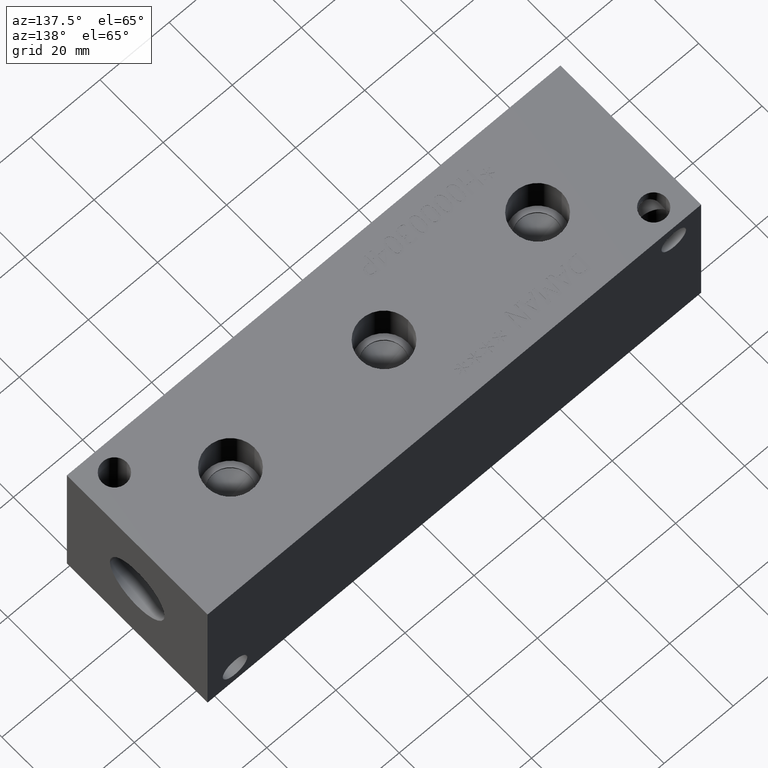
[diagram: clean part render]
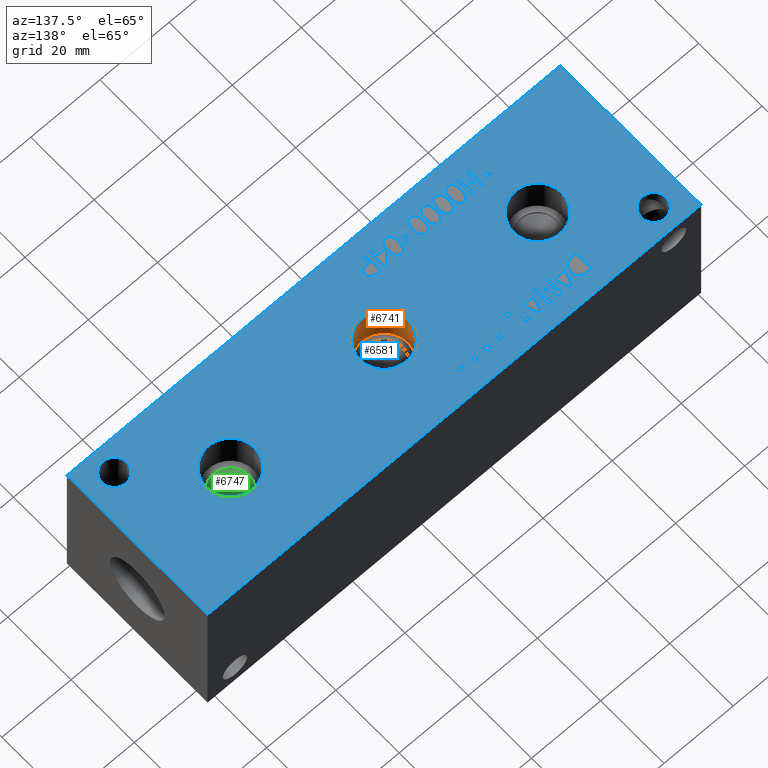
[diagram: same view with three faces highlighted in distinct colors, each labeled with its STEP entity id]
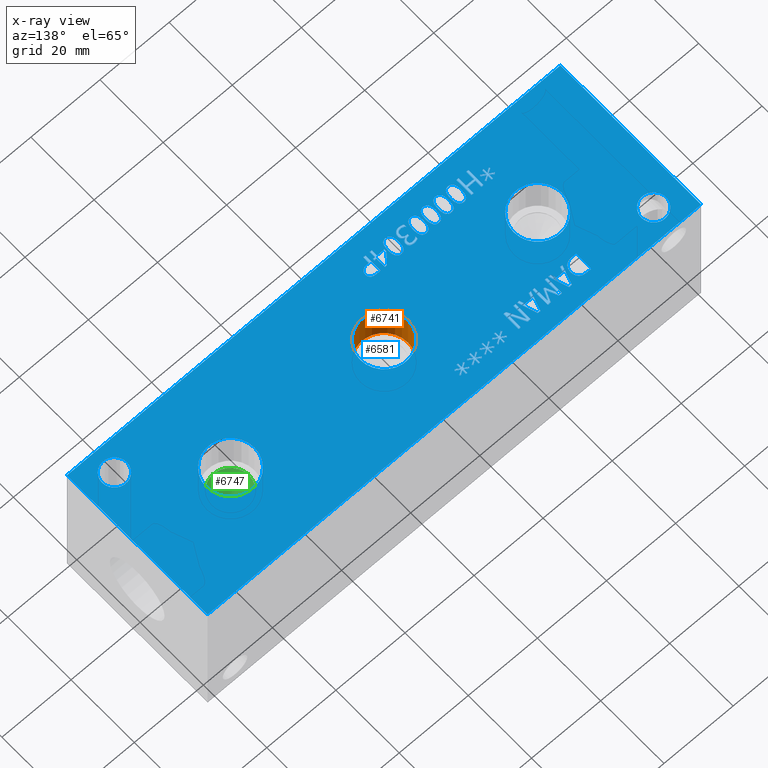
[diagram: x-ray of the same camera — body ghosted, the three highlighted faces saturated]
A machine part, auxiliary view with three faces highlighted in distinct colors.
The next image is the same camera in x-ray (body ghosted, the three faces saturated) — at least one of them is partly hidden behind the body in this view.
Their STEP definitions:

[orange] entity #6741 — the highlighted cylindrical surface (bore or boss wall) has radius 6.9342 mm, axis along (0, 0, 1).
#35=CYLINDRICAL_SURFACE('',#7032,6.9342);
#49=CIRCLE('',#6854,6.9342);
#50=CIRCLE('',#6855,6.9342);
#65=CIRCLE('',#7029,6.9342);
#66=CIRCLE('',#7030,6.9342);
#679=FACE_OUTER_BOUND('',#1055,.T.);
#1055=EDGE_LOOP('',(#5913,#5914,#5915,#5916,#5917,#5918));
#1748=LINE('',#11383,#2427);
#2427=VECTOR('',#8247,6.9342);
#3059=VERTEX_POINT('',#10652);
#3060=VERTEX_POINT('',#10653);
#3224=VERTEX_POINT('',#11376);
#3225=VERTEX_POINT('',#11377);
#3826=EDGE_CURVE('',#3059,#3060,#49,.T.);
#3827=EDGE_CURVE('',#3060,#3059,#50,.T.);
#4134=EDGE_CURVE('',#3224,#3225,#65,.T.);
#4135=EDGE_CURVE('',#3225,#3224,#66,.T.);
#4137=EDGE_CURVE('',#3060,#3225,#1748,.T.);
#5913=ORIENTED_EDGE('',*,*,#3826,.F.);
#5914=ORIENTED_EDGE('',*,*,#3827,.F.);
#5915=ORIENTED_EDGE('',*,*,#4137,.T.);
#5916=ORIENTED_EDGE('',*,*,#4134,.F.);
#5917=ORIENTED_EDGE('',*,*,#4135,.F.);
#5918=ORIENTED_EDGE('',*,*,#4137,.F.);
#6741=ADVANCED_FACE('',(#679),#35,.F.);
#6854=AXIS2_PLACEMENT_3D('',#10654,#7617,#7618);
#6855=AXIS2_PLACEMENT_3D('',#10655,#7619,#7620);
#7029=AXIS2_PLACEMENT_3D('',#11378,#8239,#8240);
#7030=AXIS2_PLACEMENT_3D('',#11379,#8241,#8242);
#7032=AXIS2_PLACEMENT_3D('',#11382,#8245,#8246);
#7617=DIRECTION('center_axis',(0.,0.,-1.));
#7618=DIRECTION('ref_axis',(1.,0.,0.));
#7619=DIRECTION('center_axis',(0.,0.,-1.));
#7620=DIRECTION('ref_axis',(1.,0.,0.));
#8239=DIRECTION('center_axis',(0.,0.,1.));
#8240=DIRECTION('ref_axis',(1.,0.,0.));
#8241=DIRECTION('center_axis',(0.,0.,1.));
#8242=DIRECTION('ref_axis',(1.,0.,0.));
#8245=DIRECTION('center_axis',(0.,0.,1.));
#8246=DIRECTION('ref_axis',(1.,0.,0.));
#8247=DIRECTION('',(0.,0.,-1.));
#10652=CARTESIAN_POINT('',(78.359,22.225,44.45));
#10653=CARTESIAN_POINT('',(64.4906,22.225,44.45));
#10654=CARTESIAN_POINT('Origin',(71.4248,22.225,44.45));
#10655=CARTESIAN_POINT('Origin',(71.4248,22.225,44.45));
#11376=CARTESIAN_POINT('',(78.359,22.225,33.0454));
#11377=CARTESIAN_POINT('',(64.4906,22.225,33.0454));
#11378=CARTESIAN_POINT('Origin',(71.4248,22.225,33.0454));
#11379=CARTESIAN_POINT('Origin',(71.4248,22.225,33.0454));
#11382=CARTESIAN_POINT('Origin',(71.4248,22.225,38.7477));
#11383=CARTESIAN_POINT('',(64.4906,22.225,38.7477));

[blue] entity #6581 — the highlighted planar face has unit normal (0, 0, 1).
#45=CIRCLE('',#6850,3.5687);
#46=CIRCLE('',#6851,3.5687);
#47=CIRCLE('',#6852,3.5687);
#48=CIRCLE('',#6853,3.5687);
#49=CIRCLE('',#6854,6.9342);
#50=CIRCLE('',#6855,6.9342);
#51=CIRCLE('',#6856,6.9342);
#52=CIRCLE('',#6857,6.9342);
#53=CIRCLE('',#6858,6.9342);
#54=CIRCLE('',#6859,6.9342);
#99=FACE_BOUND('',#868,.T.);
#100=FACE_BOUND('',#869,.T.);
#101=FACE_BOUND('',#870,.T.);
#102=FACE_BOUND('',#871,.T.);
#103=FACE_BOUND('',#872,.T.);
#104=FACE_BOUND('',#873,.T.);
#105=FACE_BOUND('',#874,.T.);
#106=FACE_BOUND('',#875,.T.);
#107=FACE_BOUND('',#876,.T.);
#108=FACE_BOUND('',#877,.T.);
#109=FACE_BOUND('',#878,.T.);
#110=FACE_BOUND('',#879,.T.);
#111=FACE_BOUND('',#880,.T.);
#112=FACE_BOUND('',#881,.T.);
#113=FACE_BOUND('',#882,.T.);
#114=FACE_BOUND('',#883,.T.);
#115=FACE_BOUND('',#884,.T.);
#116=FACE_BOUND('',#885,.T.);
#117=FACE_BOUND('',#886,.T.);
#118=FACE_BOUND('',#887,.T.);
#119=FACE_BOUND('',#888,.T.);
#120=FACE_BOUND('',#889,.T.);
#121=FACE_BOUND('',#890,.T.);
#122=FACE_BOUND('',#891,.T.);
#209=PLANE('',#6849);
#519=FACE_OUTER_BOUND('',#867,.T.);
#867=EDGE_LOOP('',(#4918,#4919,#4920,#4921));
#868=EDGE_LOOP('',(#4922,#4923,#4924,#4925,#4926,#4927,#4928,#4929,#4930,
#4931,#4932,#4933,#4934,#4935,#4936,#4937,#4938,#4939));
#869=EDGE_LOOP('',(#4940,#4941,#4942,#4943,#4944,#4945,#4946,#4947,#4948,
#4949,#4950,#4951,#4952,#4953,#4954,#4955,#4956,#4957));
#870=EDGE_LOOP('',(#4958,#4959,#4960,#4961,#4962,#4963,#4964,#4965,#4966,
#4967,#4968,#4969,#4970));
#871=EDGE_LOOP('',(#4971,#4972,#4973,#4974,#4975,#4976,#4977,#4978));
#872=EDGE_LOOP('',(#4979,#4980,#4981,#4982,#4983,#4984,#4985));
#873=EDGE_LOOP('',(#4986,#4987,#4988,#4989,#4990,#4991,#4992,#4993));
#874=EDGE_LOOP('',(#4994,#4995,#4996,#4997,#4998,#4999,#5000,#5001,#5002,
#5003));
#875=EDGE_LOOP('',(#5004,#5005,#5006,#5007,#5008,#5009,#5010,#5011,#5012,
#5013,#5014,#5015,#5016,#5017,#5018,#5019,#5020,#5021));
#876=EDGE_LOOP('',(#5022,#5023,#5024,#5025,#5026,#5027,#5028,#5029,#5030,
#5031,#5032,#5033,#5034,#5035,#5036,#5037,#5038,#5039));
#877=EDGE_LOOP('',(#5040,#5041));
#878=EDGE_LOOP('',(#5042,#5043));
#879=EDGE_LOOP('',(#5044,#5045));
#880=EDGE_LOOP('',(#5046,#5047));
#881=EDGE_LOOP('',(#5048,#5049));
#882=EDGE_LOOP('',(#5050,#5051,#5052,#5053,#5054,#5055,#5056,#5057,#5058,
#5059,#5060,#5061,#5062,#5063,#5064,#5065,#5066,#5067,#5068,#5069,#5070,
#5071,#5072,#5073,#5074,#5075,#5076));
#883=EDGE_LOOP('',(#5077,#5078,#5079,#5080));
#884=EDGE_LOOP('',(#5081,#5082,#5083,#5084));
#885=EDGE_LOOP('',(#5085,#5086,#5087,#5088));
#886=EDGE_LOOP('',(#5089,#5090,#5091,#5092));
#887=EDGE_LOOP('',(#5093,#5094,#5095,#5096,#5097,#5098,#5099,#5100,#5101,
#5102,#5103,#5104,#5105,#5106,#5107,#5108,#5109,#5110));
#888=EDGE_LOOP('',(#5111,#5112,#5113,#5114,#5115,#5116,#5117,#5118,#5119,
#5120,#5121,#5122));
#889=EDGE_LOOP('',(#5123,#5124,#5125,#5126));
#890=EDGE_LOOP('',(#5127,#5128,#5129,#5130,#5131,#5132,#5133,#5134,#5135,
#5136,#5137));
#891=EDGE_LOOP('',(#5138,#5139,#5140,#5141,#5142,#5143,#5144,#5145,#5146));
#1107=LINE('',#8501,#1786);
#1110=LINE('',#8507,#1789);
#1113=LINE('',#8513,#1792);
#1116=LINE('',#8519,#1795);
#1119=LINE('',#8525,#1798);
#1132=LINE('',#8586,#1811);
#1136=LINE('',#8594,#1815);
#1139=LINE('',#8600,#1818);
#1142=LINE('',#8606,#1821);
#1145=LINE('',#8612,#1824);
#1148=LINE('',#8618,#1827);
#1151=LINE('',#8624,#1830);
#1154=LINE('',#8630,#1833);
#1157=LINE('',#8636,#1836);
#1160=LINE('',#8642,#1839);
#1163=LINE('',#8647,#1842);
#1177=LINE('',#8882,#1856);
#1181=LINE('',#8890,#1860);
#1184=LINE('',#8896,#1863);
#1187=LINE('',#8902,#1866);
#1190=LINE('',#8908,#1869);
#1193=LINE('',#8914,#1872);
#1196=LINE('',#8920,#1875);
#1199=LINE('',#8926,#1878);
#1202=LINE('',#8932,#1881);
#1205=LINE('',#8938,#1884);
#1208=LINE('',#8944,#1887);
#1211=LINE('',#8949,#1890);
#1213=LINE('',#8955,#1892);
#1217=LINE('',#8963,#1896);
#1220=LINE('',#8969,#1899);
#1223=LINE('',#8975,#1902);
#1226=LINE('',#8981,#1905);
#1229=LINE('',#8987,#1908);
#1232=LINE('',#8993,#1911);
#1235=LINE('',#8999,#1914);
#1238=LINE('',#9005,#1917);
#1241=LINE('',#9011,#1920);
#1244=LINE('',#9017,#1923);
#1247=LINE('',#9023,#1926);
#1250=LINE('',#9029,#1929);
#1253=LINE('',#9035,#1932);
#1256=LINE('',#9041,#1935);
#1259=LINE('',#9047,#1938);
#1262=LINE('',#9053,#1941);
#1265=LINE('',#9058,#1944);
#1319=LINE('',#10039,#1998);
#1322=LINE('',#10045,#2001);
#1325=LINE('',#10051,#2004);
#1333=LINE('',#10152,#2012);
#1336=LINE('',#10158,#2015);
#1344=LINE('',#10259,#2023);
#1351=LINE('',#10341,#2030);
#1354=LINE('',#10347,#2033);
#1358=LINE('',#10390,#2037);
#1359=LINE('',#10392,#2038);
#1360=LINE('',#10394,#2039);
#1361=LINE('',#10395,#2040);
#1362=LINE('',#10398,#2041);
#1363=LINE('',#10400,#2042);
#1364=LINE('',#10402,#2043);
#1365=LINE('',#10404,#2044);
#1366=LINE('',#10406,#2045);
#1367=LINE('',#10408,#2046);
#1368=LINE('',#10410,#2047);
#1369=LINE('',#10412,#2048);
#1370=LINE('',#10414,#2049);
#1371=LINE('',#10416,#2050);
#1372=LINE('',#10418,#2051);
#1373=LINE('',#10420,#2052);
#1374=LINE('',#10422,#2053);
#1375=LINE('',#10424,#2054);
#1376=LINE('',#10426,#2055);
#1377=LINE('',#10428,#2056);
#1378=LINE('',#10430,#2057);
#1379=LINE('',#10431,#2058);
#1380=LINE('',#10434,#2059);
#1381=LINE('',#10436,#2060);
#1382=LINE('',#10438,#2061);
#1383=LINE('',#10440,#2062);
#1384=LINE('',#10442,#2063);
#1385=LINE('',#10444,#2064);
#1386=LINE('',#10446,#2065);
#1387=LINE('',#10448,#2066);
#1388=LINE('',#10450,#2067);
#1389=LINE('',#10452,#2068);
#1390=LINE('',#10454,#2069);
#1391=LINE('',#10456,#2070);
#1392=LINE('',#10458,#2071);
#1393=LINE('',#10460,#2072);
#1394=LINE('',#10462,#2073);
#1395=LINE('',#10464,#2074);
#1396=LINE('',#10466,#2075);
#1397=LINE('',#10467,#2076);
#1398=LINE('',#10470,#2077);
#1399=LINE('',#10472,#2078);
#1400=LINE('',#10474,#2079);
#1401=LINE('',#10476,#2080);
#1402=LINE('',#10478,#2081);
#1403=LINE('',#10480,#2082);
#1404=LINE('',#10482,#2083);
#1405=LINE('',#10484,#2084);
#1406=LINE('',#10486,#2085);
#1407=LINE('',#10488,#2086);
#1408=LINE('',#10490,#2087);
#1409=LINE('',#10492,#2088);
#1410=LINE('',#10493,#2089);
#1411=LINE('',#10496,#2090);
#1412=LINE('',#10498,#2091);
#1413=LINE('',#10500,#2092);
#1414=LINE('',#10502,#2093);
#1415=LINE('',#10504,#2094);
#1416=LINE('',#10506,#2095);
#1417=LINE('',#10508,#2096);
#1418=LINE('',#10509,#2097);
#1419=LINE('',#10527,#2098);
#1420=LINE('',#10529,#2099);
#1421=LINE('',#10531,#2100);
#1422=LINE('',#10538,#2101);
#1423=LINE('',#10540,#2102);
#1424=LINE('',#10542,#2103);
#1425=LINE('',#10544,#2104);
#1426=LINE('',#10546,#2105);
#1427=LINE('',#10548,#2106);
#1428=LINE('',#10550,#2107);
#1429=LINE('',#10551,#2108);
#1430=LINE('',#10554,#2109);
#1431=LINE('',#10556,#2110);
#1432=LINE('',#10558,#2111);
#1433=LINE('',#10560,#2112);
#1434=LINE('',#10562,#2113);
#1435=LINE('',#10564,#2114);
#1436=LINE('',#10566,#2115);
#1437=LINE('',#10568,#2116);
#1438=LINE('',#10570,#2117);
#1439=LINE('',#10571,#2118);
#1440=LINE('',#10574,#2119);
#1441=LINE('',#10576,#2120);
#1442=LINE('',#10578,#2121);
#1443=LINE('',#10580,#2122);
#1444=LINE('',#10582,#2123);
#1445=LINE('',#10584,#2124);
#1446=LINE('',#10586,#2125);
#1447=LINE('',#10588,#2126);
#1448=LINE('',#10590,#2127);
#1449=LINE('',#10592,#2128);
#1450=LINE('',#10594,#2129);
#1451=LINE('',#10596,#2130);
#1452=LINE('',#10598,#2131);
#1453=LINE('',#10600,#2132);
#1454=LINE('',#10602,#2133);
#1455=LINE('',#10604,#2134);
#1456=LINE('',#10606,#2135);
#1457=LINE('',#10607,#2136);
#1458=LINE('',#10610,#2137);
#1459=LINE('',#10612,#2138);
#1460=LINE('',#10614,#2139);
#1461=LINE('',#10616,#2140);
#1462=LINE('',#10618,#2141);
#1463=LINE('',#10620,#2142);
#1464=LINE('',#10622,#2143);
#1465=LINE('',#10624,#2144);
#1466=LINE('',#10626,#2145);
#1467=LINE('',#10628,#2146);
#1468=LINE('',#10630,#2147);
#1469=LINE('',#10632,#2148);
#1470=LINE('',#10634,#2149);
#1471=LINE('',#10636,#2150);
#1472=LINE('',#10638,#2151);
#1473=LINE('',#10640,#2152);
#1474=LINE('',#10642,#2153);
#1475=LINE('',#10643,#2154);
#1786=VECTOR('',#7106,10.);
#1789=VECTOR('',#7111,10.);
#1792=VECTOR('',#7116,10.);
#1795=VECTOR('',#7121,10.);
#1798=VECTOR('',#7126,10.);
#1811=VECTOR('',#7149,10.);
#1815=VECTOR('',#7155,10.);
#1818=VECTOR('',#7160,10.);
#1821=VECTOR('',#7165,10.);
#1824=VECTOR('',#7170,10.);
#1827=VECTOR('',#7175,10.);
#1830=VECTOR('',#7180,10.);
#1833=VECTOR('',#7185,10.);
#1836=VECTOR('',#7190,10.);
#1839=VECTOR('',#7195,10.);
#1842=VECTOR('',#7200,10.);
#1856=VECTOR('',#7220,10.);
#1860=VECTOR('',#7226,10.);
#1863=VECTOR('',#7231,10.);
#1866=VECTOR('',#7236,10.);
#1869=VECTOR('',#7241,10.);
#1872=VECTOR('',#7246,10.);
#1875=VECTOR('',#7251,10.);
#1878=VECTOR('',#7256,10.);
#1881=VECTOR('',#7261,10.);
#1884=VECTOR('',#7266,10.);
#1887=VECTOR('',#7271,10.);
#1890=VECTOR('',#7276,10.);
#1892=VECTOR('',#7282,10.);
#1896=VECTOR('',#7288,10.);
#1899=VECTOR('',#7293,10.);
#1902=VECTOR('',#7298,10.);
#1905=VECTOR('',#7303,10.);
#1908=VECTOR('',#7308,10.);
#1911=VECTOR('',#7313,10.);
#1914=VECTOR('',#7318,10.);
#1917=VECTOR('',#7323,10.);
#1920=VECTOR('',#7328,10.);
#1923=VECTOR('',#7333,10.);
#1926=VECTOR('',#7338,10.);
#1929=VECTOR('',#7343,10.);
#1932=VECTOR('',#7348,10.);
#1935=VECTOR('',#7353,10.);
#1938=VECTOR('',#7358,10.);
#1941=VECTOR('',#7363,10.);
#1944=VECTOR('',#7368,10.);
#1998=VECTOR('',#7434,10.);
#2001=VECTOR('',#7439,10.);
#2004=VECTOR('',#7444,10.);
#2012=VECTOR('',#7454,10.);
#2015=VECTOR('',#7459,10.);
#2023=VECTOR('',#7469,10.);
#2030=VECTOR('',#7478,10.);
#2033=VECTOR('',#7483,10.);
#2037=VECTOR('',#7491,10.);
#2038=VECTOR('',#7492,10.);
#2039=VECTOR('',#7493,10.);
#2040=VECTOR('',#7494,10.);
#2041=VECTOR('',#7495,10.);
#2042=VECTOR('',#7496,10.);
#2043=VECTOR('',#7497,10.);
#2044=VECTOR('',#7498,10.);
#2045=VECTOR('',#7499,10.);
#2046=VECTOR('',#7500,10.);
#2047=VECTOR('',#7501,10.);
#2048=VECTOR('',#7502,10.);
#2049=VECTOR('',#7503,10.);
#2050=VECTOR('',#7504,10.);
#2051=VECTOR('',#7505,10.);
#2052=VECTOR('',#7506,10.);
#2053=VECTOR('',#7507,10.);
#2054=VECTOR('',#7508,10.);
#2055=VECTOR('',#7509,10.);
#2056=VECTOR('',#7510,10.);
#2057=VECTOR('',#7511,10.);
#2058=VECTOR('',#7512,10.);
#2059=VECTOR('',#7513,10.);
#2060=VECTOR('',#7514,10.);
#2061=VECTOR('',#7515,10.);
#2062=VECTOR('',#7516,10.);
#2063=VECTOR('',#7517,10.);
#2064=VECTOR('',#7518,10.);
#2065=VECTOR('',#7519,10.);
#2066=VECTOR('',#7520,10.);
#2067=VECTOR('',#7521,10.);
#2068=VECTOR('',#7522,10.);
#2069=VECTOR('',#7523,10.);
#2070=VECTOR('',#7524,10.);
#2071=VECTOR('',#7525,10.);
#2072=VECTOR('',#7526,10.);
#2073=VECTOR('',#7527,10.);
#2074=VECTOR('',#7528,10.);
#2075=VECTOR('',#7529,10.);
#2076=VECTOR('',#7530,10.);
#2077=VECTOR('',#7531,10.);
#2078=VECTOR('',#7532,10.);
#2079=VECTOR('',#7533,10.);
#2080=VECTOR('',#7534,10.);
#2081=VECTOR('',#7535,10.);
#2082=VECTOR('',#7536,10.);
#2083=VECTOR('',#7537,10.);
#2084=VECTOR('',#7538,10.);
#2085=VECTOR('',#7539,10.);
#2086=VECTOR('',#7540,10.);
#2087=VECTOR('',#7541,10.);
#2088=VECTOR('',#7542,10.);
#2089=VECTOR('',#7543,10.);
#2090=VECTOR('',#7544,10.);
#2091=VECTOR('',#7545,10.);
#2092=VECTOR('',#7546,10.);
#2093=VECTOR('',#7547,10.);
#2094=VECTOR('',#7548,10.);
#2095=VECTOR('',#7549,10.);
#2096=VECTOR('',#7550,10.);
#2097=VECTOR('',#7551,10.);
#2098=VECTOR('',#7552,10.);
#2099=VECTOR('',#7553,10.);
#2100=VECTOR('',#7554,10.);
#2101=VECTOR('',#7555,10.);
#2102=VECTOR('',#7556,10.);
#2103=VECTOR('',#7557,10.);
#2104=VECTOR('',#7558,10.);
#2105=VECTOR('',#7559,10.);
#2106=VECTOR('',#7560,10.);
#2107=VECTOR('',#7561,10.);
#2108=VECTOR('',#7562,10.);
#2109=VECTOR('',#7563,10.);
#2110=VECTOR('',#7564,10.);
#2111=VECTOR('',#7565,10.);
#2112=VECTOR('',#7566,10.);
#2113=VECTOR('',#7567,10.);
#2114=VECTOR('',#7568,10.);
#2115=VECTOR('',#7569,10.);
#2116=VECTOR('',#7570,10.);
#2117=VECTOR('',#7571,10.);
#2118=VECTOR('',#7572,10.);
#2119=VECTOR('',#7573,10.);
#2120=VECTOR('',#7574,10.);
#2121=VECTOR('',#7575,10.);
#2122=VECTOR('',#7576,10.);
#2123=VECTOR('',#7577,10.);
#2124=VECTOR('',#7578,10.);
#2125=VECTOR('',#7579,10.);
#2126=VECTOR('',#7580,10.);
#2127=VECTOR('',#7581,10.);
#2128=VECTOR('',#7582,10.);
#2129=VECTOR('',#7583,10.);
#2130=VECTOR('',#7584,10.);
#2131=VECTOR('',#7585,10.);
#2132=VECTOR('',#7586,10.);
#2133=VECTOR('',#7587,10.);
#2134=VECTOR('',#7588,10.);
#2135=VECTOR('',#7589,10.);
#2136=VECTOR('',#7590,10.);
#2137=VECTOR('',#7591,10.);
#2138=VECTOR('',#7592,10.);
#2139=VECTOR('',#7593,10.);
#2140=VECTOR('',#7594,10.);
#2141=VECTOR('',#7595,10.);
#2142=VECTOR('',#7596,10.);
#2143=VECTOR('',#7597,10.);
#2144=VECTOR('',#7598,10.);
#2145=VECTOR('',#7599,10.);
#2146=VECTOR('',#7600,10.);
#2147=VECTOR('',#7601,10.);
#2148=VECTOR('',#7602,10.);
#2149=VECTOR('',#7603,10.);
#2150=VECTOR('',#7604,10.);
#2151=VECTOR('',#7605,10.);
#2152=VECTOR('',#7606,10.);
#2153=VECTOR('',#7607,10.);
#2154=VECTOR('',#7608,10.);
#2457=B_SPLINE_CURVE_WITH_KNOTS('',2,(#8468,#8469,#8470,#8471),
 .UNSPECIFIED.,.F.,.F.,(3,1,3),(0.,1.,2.),.UNSPECIFIED.);
#2459=B_SPLINE_CURVE_WITH_KNOTS('',2,(#8489,#8490,#8491,#8492),
 .UNSPECIFIED.,.F.,.F.,(3,1,3),(0.,1.,2.),.UNSPECIFIED.);
#2461=B_SPLINE_CURVE_WITH_KNOTS('',2,(#8538,#8539,#8540,#8541),
 .UNSPECIFIED.,.F.,.F.,(3,1,3),(0.,1.,2.),.UNSPECIFIED.);
#2463=B_SPLINE_CURVE_WITH_KNOTS('',2,(#8556,#8557,#8558,#8559),
 .UNSPECIFIED.,.F.,.F.,(3,1,3),(0.,1.,2.),.UNSPECIFIED.);
#2481=B_SPLINE_CURVE_WITH_KNOTS('',2,(#8812,#8813,#8814,#8815),
 .UNSPECIFIED.,.F.,.F.,(3,1,3),(0.,1.,2.),.UNSPECIFIED.);
#2483=B_SPLINE_CURVE_WITH_KNOTS('',2,(#8833,#8834,#8835,#8836),
 .UNSPECIFIED.,.F.,.F.,(3,1,3),(0.,1.,2.),.UNSPECIFIED.);
#2485=B_SPLINE_CURVE_WITH_KNOTS('',2,(#8852,#8853,#8854,#8855),
 .UNSPECIFIED.,.F.,.F.,(3,1,3),(0.,1.,2.),.UNSPECIFIED.);
#2487=B_SPLINE_CURVE_WITH_KNOTS('',2,(#8870,#8871,#8872,#8873),
 .UNSPECIFIED.,.F.,.F.,(3,1,3),(0.,1.,2.),.UNSPECIFIED.);
#2505=B_SPLINE_CURVE_WITH_KNOTS('',2,(#9223,#9224,#9225,#9226),
 .UNSPECIFIED.,.F.,.F.,(3,1,3),(0.,1.,2.),.UNSPECIFIED.);
#2507=B_SPLINE_CURVE_WITH_KNOTS('',2,(#9244,#9245,#9246,#9247),
 .UNSPECIFIED.,.F.,.F.,(3,1,3),(0.,1.,2.),.UNSPECIFIED.);
#2509=B_SPLINE_CURVE_WITH_KNOTS('',2,(#9263,#9264,#9265,#9266),
 .UNSPECIFIED.,.F.,.F.,(3,1,3),(0.,1.,2.),.UNSPECIFIED.);
#2511=B_SPLINE_CURVE_WITH_KNOTS('',2,(#9281,#9282,#9283,#9284),
 .UNSPECIFIED.,.F.,.F.,(3,1,3),(0.,1.,2.),.UNSPECIFIED.);
#2529=B_SPLINE_CURVE_WITH_KNOTS('',2,(#9452,#9453,#9454,#9455),
 .UNSPECIFIED.,.F.,.F.,(3,1,3),(0.,1.,2.),.UNSPECIFIED.);
#2531=B_SPLINE_CURVE_WITH_KNOTS('',2,(#9473,#9474,#9475,#9476),
 .UNSPECIFIED.,.F.,.F.,(3,1,3),(0.,1.,2.),.UNSPECIFIED.);
#2533=B_SPLINE_CURVE_WITH_KNOTS('',2,(#9492,#9493,#9494,#9495),
 .UNSPECIFIED.,.F.,.F.,(3,1,3),(0.,1.,2.),.UNSPECIFIED.);
#2535=B_SPLINE_CURVE_WITH_KNOTS('',2,(#9510,#9511,#9512,#9513),
 .UNSPECIFIED.,.F.,.F.,(3,1,3),(0.,1.,2.),.UNSPECIFIED.);
#2553=B_SPLINE_CURVE_WITH_KNOTS('',2,(#9681,#9682,#9683,#9684),
 .UNSPECIFIED.,.F.,.F.,(3,1,3),(0.,1.,2.),.UNSPECIFIED.);
#2555=B_SPLINE_CURVE_WITH_KNOTS('',2,(#9702,#9703,#9704,#9705),
 .UNSPECIFIED.,.F.,.F.,(3,1,3),(0.,1.,2.),.UNSPECIFIED.);
#2557=B_SPLINE_CURVE_WITH_KNOTS('',2,(#9721,#9722,#9723,#9724),
 .UNSPECIFIED.,.F.,.F.,(3,1,3),(0.,1.,2.),.UNSPECIFIED.);
#2559=B_SPLINE_CURVE_WITH_KNOTS('',2,(#9739,#9740,#9741,#9742),
 .UNSPECIFIED.,.F.,.F.,(3,1,3),(0.,1.,2.),.UNSPECIFIED.);
#2577=B_SPLINE_CURVE_WITH_KNOTS('',2,(#9910,#9911,#9912,#9913),
 .UNSPECIFIED.,.F.,.F.,(3,1,3),(0.,1.,2.),.UNSPECIFIED.);
#2579=B_SPLINE_CURVE_WITH_KNOTS('',2,(#9931,#9932,#9933,#9934),
 .UNSPECIFIED.,.F.,.F.,(3,1,3),(0.,1.,2.),.UNSPECIFIED.);
#2581=B_SPLINE_CURVE_WITH_KNOTS('',2,(#9950,#9951,#9952,#9953),
 .UNSPECIFIED.,.F.,.F.,(3,1,3),(0.,1.,2.),.UNSPECIFIED.);
#2583=B_SPLINE_CURVE_WITH_KNOTS('',2,(#9968,#9969,#9970,#9971),
 .UNSPECIFIED.,.F.,.F.,(3,1,3),(0.,1.,2.),.UNSPECIFIED.);
#2585=B_SPLINE_CURVE_WITH_KNOTS('',2,(#9987,#9988,#9989,#9990),
 .UNSPECIFIED.,.F.,.F.,(3,1,3),(0.,1.,2.),.UNSPECIFIED.);
#2587=B_SPLINE_CURVE_WITH_KNOTS('',2,(#10008,#10009,#10010,#10011),
 .UNSPECIFIED.,.F.,.F.,(3,1,3),(0.,1.,2.),.UNSPECIFIED.);
#2589=B_SPLINE_CURVE_WITH_KNOTS('',2,(#10027,#10028,#10029,#10030),
 .UNSPECIFIED.,.F.,.F.,(3,1,3),(0.,1.,2.),.UNSPECIFIED.);
#2591=B_SPLINE_CURVE_WITH_KNOTS('',2,(#10064,#10065,#10066,#10067),
 .UNSPECIFIED.,.F.,.F.,(3,1,3),(0.,1.,2.),.UNSPECIFIED.);
#2593=B_SPLINE_CURVE_WITH_KNOTS('',2,(#10083,#10084,#10085,#10086),
 .UNSPECIFIED.,.F.,.F.,(3,1,3),(0.,1.,2.),.UNSPECIFIED.);
#2595=B_SPLINE_CURVE_WITH_KNOTS('',2,(#10102,#10103,#10104,#10105),
 .UNSPECIFIED.,.F.,.F.,(3,1,3),(0.,1.,2.),.UNSPECIFIED.);
#2597=B_SPLINE_CURVE_WITH_KNOTS('',2,(#10121,#10122,#10123,#10124),
 .UNSPECIFIED.,.F.,.F.,(3,1,3),(0.,1.,2.),.UNSPECIFIED.);
#2599=B_SPLINE_CURVE_WITH_KNOTS('',2,(#10140,#10141,#10142,#10143),
 .UNSPECIFIED.,.F.,.F.,(3,1,3),(0.,1.,2.),.UNSPECIFIED.);
#2601=B_SPLINE_CURVE_WITH_KNOTS('',2,(#10171,#10172,#10173,#10174),
 .UNSPECIFIED.,.F.,.F.,(3,1,3),(0.,1.,2.),.UNSPECIFIED.);
#2603=B_SPLINE_CURVE_WITH_KNOTS('',2,(#10190,#10191,#10192,#10193),
 .UNSPECIFIED.,.F.,.F.,(3,1,3),(0.,1.,2.),.UNSPECIFIED.);
#2605=B_SPLINE_CURVE_WITH_KNOTS('',2,(#10209,#10210,#10211,#10212),
 .UNSPECIFIED.,.F.,.F.,(3,1,3),(0.,1.,2.),.UNSPECIFIED.);
#2607=B_SPLINE_CURVE_WITH_KNOTS('',2,(#10228,#10229,#10230,#10231),
 .UNSPECIFIED.,.F.,.F.,(3,1,3),(0.,1.,2.),.UNSPECIFIED.);
#2609=B_SPLINE_CURVE_WITH_KNOTS('',2,(#10247,#10248,#10249,#10250),
 .UNSPECIFIED.,.F.,.F.,(3,1,3),(0.,1.,2.),.UNSPECIFIED.);
#2611=B_SPLINE_CURVE_WITH_KNOTS('',2,(#10272,#10273,#10274,#10275),
 .UNSPECIFIED.,.F.,.F.,(3,1,3),(0.,1.,2.),.UNSPECIFIED.);
#2613=B_SPLINE_CURVE_WITH_KNOTS('',2,(#10291,#10292,#10293,#10294),
 .UNSPECIFIED.,.F.,.F.,(3,1,3),(0.,1.,2.),.UNSPECIFIED.);
#2615=B_SPLINE_CURVE_WITH_KNOTS('',2,(#10310,#10311,#10312,#10313),
 .UNSPECIFIED.,.F.,.F.,(3,1,3),(0.,1.,2.),.UNSPECIFIED.);
#2617=B_SPLINE_CURVE_WITH_KNOTS('',2,(#10329,#10330,#10331,#10332),
 .UNSPECIFIED.,.F.,.F.,(3,1,3),(0.,1.,2.),.UNSPECIFIED.);
#2619=B_SPLINE_CURVE_WITH_KNOTS('',2,(#10360,#10361,#10362,#10363),
 .UNSPECIFIED.,.F.,.F.,(3,1,3),(0.,1.,2.),.UNSPECIFIED.);
#2621=B_SPLINE_CURVE_WITH_KNOTS('',2,(#10378,#10379,#10380,#10381),
 .UNSPECIFIED.,.F.,.F.,(3,1,3),(0.,1.,2.),.UNSPECIFIED.);
#2623=B_SPLINE_CURVE_WITH_KNOTS('',2,(#10512,#10513,#10514,#10515),
 .UNSPECIFIED.,.F.,.F.,(3,1,3),(0.,1.,2.),.UNSPECIFIED.);
#2624=B_SPLINE_CURVE_WITH_KNOTS('',2,(#10517,#10518,#10519,#10520),
 .UNSPECIFIED.,.F.,.F.,(3,1,3),(0.,1.,2.),.UNSPECIFIED.);
#2625=B_SPLINE_CURVE_WITH_KNOTS('',2,(#10522,#10523,#10524,#10525),
 .UNSPECIFIED.,.F.,.F.,(3,1,3),(0.,1.,2.),.UNSPECIFIED.);
#2626=B_SPLINE_CURVE_WITH_KNOTS('',2,(#10532,#10533,#10534,#10535),
 .UNSPECIFIED.,.F.,.F.,(3,1,3),(0.,1.,2.),.UNSPECIFIED.);
#2653=VERTEX_POINT('',#8466);
#2654=VERTEX_POINT('',#8467);
#2657=VERTEX_POINT('',#8488);
#2659=VERTEX_POINT('',#8500);
#2661=VERTEX_POINT('',#8506);
#2663=VERTEX_POINT('',#8512);
#2665=VERTEX_POINT('',#8518);
#2667=VERTEX_POINT('',#8524);
#2669=VERTEX_POINT('',#8537);
#2677=VERTEX_POINT('',#8584);
#2678=VERTEX_POINT('',#8585);
#2681=VERTEX_POINT('',#8593);
#2683=VERTEX_POINT('',#8599);
#2685=VERTEX_POINT('',#8605);
#2687=VERTEX_POINT('',#8611);
#2689=VERTEX_POINT('',#8617);
#2691=VERTEX_POINT('',#8623);
#2693=VERTEX_POINT('',#8629);
#2695=VERTEX_POINT('',#8635);
#2697=VERTEX_POINT('',#8641);
#2715=VERTEX_POINT('',#8810);
#2716=VERTEX_POINT('',#8811);
#2719=VERTEX_POINT('',#8832);
#2721=VERTEX_POINT('',#8851);
#2723=VERTEX_POINT('',#8880);
#2724=VERTEX_POINT('',#8881);
#2727=VERTEX_POINT('',#8889);
#2729=VERTEX_POINT('',#8895);
#2731=VERTEX_POINT('',#8901);
#2733=VERTEX_POINT('',#8907);
#2735=VERTEX_POINT('',#8913);
#2737=VERTEX_POINT('',#8919);
#2739=VERTEX_POINT('',#8925);
#2741=VERTEX_POINT('',#8931);
#2743=VERTEX_POINT('',#8937);
#2745=VERTEX_POINT('',#8943);
#2747=VERTEX_POINT('',#8953);
#2748=VERTEX_POINT('',#8954);
#2751=VERTEX_POINT('',#8962);
#2753=VERTEX_POINT('',#8968);
#2755=VERTEX_POINT('',#8974);
#2757=VERTEX_POINT('',#8980);
#2759=VERTEX_POINT('',#8986);
#2761=VERTEX_POINT('',#8992);
#2763=VERTEX_POINT('',#8998);
#2765=VERTEX_POINT('',#9004);
#2767=VERTEX_POINT('',#9010);
#2769=VERTEX_POINT('',#9016);
#2771=VERTEX_POINT('',#9022);
#2773=VERTEX_POINT('',#9028);
#2775=VERTEX_POINT('',#9034);
#2777=VERTEX_POINT('',#9040);
#2779=VERTEX_POINT('',#9046);
#2781=VERTEX_POINT('',#9052);
#2799=VERTEX_POINT('',#9221);
#2800=VERTEX_POINT('',#9222);
#2803=VERTEX_POINT('',#9243);
#2805=VERTEX_POINT('',#9262);
#2823=VERTEX_POINT('',#9450);
#2824=VERTEX_POINT('',#9451);
#2827=VERTEX_POINT('',#9472);
#2829=VERTEX_POINT('',#9491);
#2847=VERTEX_POINT('',#9679);
#2848=VERTEX_POINT('',#9680);
#2851=VERTEX_POINT('',#9701);
#2853=VERTEX_POINT('',#9720);
#2871=VERTEX_POINT('',#9908);
#2872=VERTEX_POINT('',#9909);
#2875=VERTEX_POINT('',#9930);
#2877=VERTEX_POINT('',#9949);
#2879=VERTEX_POINT('',#9985);
#2880=VERTEX_POINT('',#9986);
#2883=VERTEX_POINT('',#10007);
#2885=VERTEX_POINT('',#10026);
#2887=VERTEX_POINT('',#10038);
#2889=VERTEX_POINT('',#10044);
#2891=VERTEX_POINT('',#10050);
#2893=VERTEX_POINT('',#10063);
#2895=VERTEX_POINT('',#10082);
#2897=VERTEX_POINT('',#10101);
#2899=VERTEX_POINT('',#10120);
#2901=VERTEX_POINT('',#10139);
#2903=VERTEX_POINT('',#10151);
#2905=VERTEX_POINT('',#10157);
#2907=VERTEX_POINT('',#10170);
#2909=VERTEX_POINT('',#10189);
#2911=VERTEX_POINT('',#10208);
#2913=VERTEX_POINT('',#10227);
#2915=VERTEX_POINT('',#10246);
#2917=VERTEX_POINT('',#10258);
#2919=VERTEX_POINT('',#10271);
#2921=VERTEX_POINT('',#10290);
#2923=VERTEX_POINT('',#10309);
#2925=VERTEX_POINT('',#10328);
#2927=VERTEX_POINT('',#10340);
#2929=VERTEX_POINT('',#10346);
#2931=VERTEX_POINT('',#10359);
#2933=VERTEX_POINT('',#10388);
#2934=VERTEX_POINT('',#10389);
#2935=VERTEX_POINT('',#10391);
#2936=VERTEX_POINT('',#10393);
#2937=VERTEX_POINT('',#10396);
#2938=VERTEX_POINT('',#10397);
#2939=VERTEX_POINT('',#10399);
#2940=VERTEX_POINT('',#10401);
#2941=VERTEX_POINT('',#10403);
#2942=VERTEX_POINT('',#10405);
#2943=VERTEX_POINT('',#10407);
#2944=VERTEX_POINT('',#10409);
#2945=VERTEX_POINT('',#10411);
#2946=VERTEX_POINT('',#10413);
#2947=VERTEX_POINT('',#10415);
#2948=VERTEX_POINT('',#10417);
#2949=VERTEX_POINT('',#10419);
#2950=VERTEX_POINT('',#10421);
#2951=VERTEX_POINT('',#10423);
#2952=VERTEX_POINT('',#10425);
#2953=VERTEX_POINT('',#10427);
#2954=VERTEX_POINT('',#10429);
#2955=VERTEX_POINT('',#10432);
#2956=VERTEX_POINT('',#10433);
#2957=VERTEX_POINT('',#10435);
#2958=VERTEX_POINT('',#10437);
#2959=VERTEX_POINT('',#10439);
#2960=VERTEX_POINT('',#10441);
#2961=VERTEX_POINT('',#10443);
#2962=VERTEX_POINT('',#10445);
#2963=VERTEX_POINT('',#10447);
#2964=VERTEX_POINT('',#10449);
#2965=VERTEX_POINT('',#10451);
#2966=VERTEX_POINT('',#10453);
#2967=VERTEX_POINT('',#10455);
#2968=VERTEX_POINT('',#10457);
#2969=VERTEX_POINT('',#10459);
#2970=VERTEX_POINT('',#10461);
#2971=VERTEX_POINT('',#10463);
#2972=VERTEX_POINT('',#10465);
#2973=VERTEX_POINT('',#10468);
#2974=VERTEX_POINT('',#10469);
#2975=VERTEX_POINT('',#10471);
#2976=VERTEX_POINT('',#10473);
#2977=VERTEX_POINT('',#10475);
#2978=VERTEX_POINT('',#10477);
#2979=VERTEX_POINT('',#10479);
#2980=VERTEX_POINT('',#10481);
#2981=VERTEX_POINT('',#10483);
#2982=VERTEX_POINT('',#10485);
#2983=VERTEX_POINT('',#10487);
#2984=VERTEX_POINT('',#10489);
#2985=VERTEX_POINT('',#10491);
#2986=VERTEX_POINT('',#10494);
#2987=VERTEX_POINT('',#10495);
#2988=VERTEX_POINT('',#10497);
#2989=VERTEX_POINT('',#10499);
#2990=VERTEX_POINT('',#10501);
#2991=VERTEX_POINT('',#10503);
#2992=VERTEX_POINT('',#10505);
#2993=VERTEX_POINT('',#10507);
#2994=VERTEX_POINT('',#10510);
#2995=VERTEX_POINT('',#10511);
#2996=VERTEX_POINT('',#10516);
#2997=VERTEX_POINT('',#10521);
#2998=VERTEX_POINT('',#10526);
#2999=VERTEX_POINT('',#10528);
#3000=VERTEX_POINT('',#10530);
#3001=VERTEX_POINT('',#10536);
#3002=VERTEX_POINT('',#10537);
#3003=VERTEX_POINT('',#10539);
#3004=VERTEX_POINT('',#10541);
#3005=VERTEX_POINT('',#10543);
#3006=VERTEX_POINT('',#10545);
#3007=VERTEX_POINT('',#10547);
#3008=VERTEX_POINT('',#10549);
#3009=VERTEX_POINT('',#10552);
#3010=VERTEX_POINT('',#10553);
#3011=VERTEX_POINT('',#10555);
#3012=VERTEX_POINT('',#10557);
#3013=VERTEX_POINT('',#10559);
#3014=VERTEX_POINT('',#10561);
#3015=VERTEX_POINT('',#10563);
#3016=VERTEX_POINT('',#10565);
#3017=VERTEX_POINT('',#10567);
#3018=VERTEX_POINT('',#10569);
#3019=VERTEX_POINT('',#10572);
#3020=VERTEX_POINT('',#10573);
#3021=VERTEX_POINT('',#10575);
#3022=VERTEX_POINT('',#10577);
#3023=VERTEX_POINT('',#10579);
#3024=VERTEX_POINT('',#10581);
#3025=VERTEX_POINT('',#10583);
#3026=VERTEX_POINT('',#10585);
#3027=VERTEX_POINT('',#10587);
#3028=VERTEX_POINT('',#10589);
#3029=VERTEX_POINT('',#10591);
#3030=VERTEX_POINT('',#10593);
#3031=VERTEX_POINT('',#10595);
#3032=VERTEX_POINT('',#10597);
#3033=VERTEX_POINT('',#10599);
#3034=VERTEX_POINT('',#10601);
#3035=VERTEX_POINT('',#10603);
#3036=VERTEX_POINT('',#10605);
#3037=VERTEX_POINT('',#10608);
#3038=VERTEX_POINT('',#10609);
#3039=VERTEX_POINT('',#10611);
#3040=VERTEX_POINT('',#10613);
#3041=VERTEX_POINT('',#10615);
#3042=VERTEX_POINT('',#10617);
#3043=VERTEX_POINT('',#10619);
#3044=VERTEX_POINT('',#10621);
#3045=VERTEX_POINT('',#10623);
#3046=VERTEX_POINT('',#10625);
#3047=VERTEX_POINT('',#10627);
#3048=VERTEX_POINT('',#10629);
#3049=VERTEX_POINT('',#10631);
#3050=VERTEX_POINT('',#10633);
#3051=VERTEX_POINT('',#10635);
#3052=VERTEX_POINT('',#10637);
#3053=VERTEX_POINT('',#10639);
#3054=VERTEX_POINT('',#10641);
#3055=VERTEX_POINT('',#10644);
#3056=VERTEX_POINT('',#10645);
#3057=VERTEX_POINT('',#10648);
#3058=VERTEX_POINT('',#10649);
#3059=VERTEX_POINT('',#10652);
#3060=VERTEX_POINT('',#10653);
#3061=VERTEX_POINT('',#10656);
#3062=VERTEX_POINT('',#10657);
#3063=VERTEX_POINT('',#10660);
#3064=VERTEX_POINT('',#10661);
#3280=EDGE_CURVE('',#2653,#2654,#2457,.T.);
#3284=EDGE_CURVE('',#2657,#2653,#2459,.T.);
#3287=EDGE_CURVE('',#2659,#2657,#1107,.T.);
#3290=EDGE_CURVE('',#2661,#2659,#1110,.T.);
#3293=EDGE_CURVE('',#2663,#2661,#1113,.T.);
#3296=EDGE_CURVE('',#2665,#2663,#1116,.T.);
#3299=EDGE_CURVE('',#2667,#2665,#1119,.T.);
#3302=EDGE_CURVE('',#2669,#2667,#2461,.T.);
#3305=EDGE_CURVE('',#2654,#2669,#2463,.T.);
#3316=EDGE_CURVE('',#2677,#2678,#1132,.T.);
#3320=EDGE_CURVE('',#2681,#2677,#1136,.T.);
#3323=EDGE_CURVE('',#2683,#2681,#1139,.T.);
#3326=EDGE_CURVE('',#2685,#2683,#1142,.T.);
#3329=EDGE_CURVE('',#2687,#2685,#1145,.T.);
#3332=EDGE_CURVE('',#2689,#2687,#1148,.T.);
#3335=EDGE_CURVE('',#2691,#2689,#1151,.T.);
#3338=EDGE_CURVE('',#2693,#2691,#1154,.T.);
#3341=EDGE_CURVE('',#2695,#2693,#1157,.T.);
#3344=EDGE_CURVE('',#2697,#2695,#1160,.T.);
#3347=EDGE_CURVE('',#2678,#2697,#1163,.T.);
#3373=EDGE_CURVE('',#2715,#2716,#2481,.T.);
#3377=EDGE_CURVE('',#2719,#2715,#2483,.T.);
#3380=EDGE_CURVE('',#2721,#2719,#2485,.T.);
#3383=EDGE_CURVE('',#2716,#2721,#2487,.T.);
#3385=EDGE_CURVE('',#2723,#2724,#1177,.T.);
#3389=EDGE_CURVE('',#2727,#2723,#1181,.T.);
#3392=EDGE_CURVE('',#2729,#2727,#1184,.T.);
#3395=EDGE_CURVE('',#2731,#2729,#1187,.T.);
#3398=EDGE_CURVE('',#2733,#2731,#1190,.T.);
#3401=EDGE_CURVE('',#2735,#2733,#1193,.T.);
#3404=EDGE_CURVE('',#2737,#2735,#1196,.T.);
#3407=EDGE_CURVE('',#2739,#2737,#1199,.T.);
#3410=EDGE_CURVE('',#2741,#2739,#1202,.T.);
#3413=EDGE_CURVE('',#2743,#2741,#1205,.T.);
#3416=EDGE_CURVE('',#2745,#2743,#1208,.T.);
#3419=EDGE_CURVE('',#2724,#2745,#1211,.T.);
#3421=EDGE_CURVE('',#2747,#2748,#1213,.T.);
#3425=EDGE_CURVE('',#2751,#2747,#1217,.T.);
#3428=EDGE_CURVE('',#2753,#2751,#1220,.T.);
#3431=EDGE_CURVE('',#2755,#2753,#1223,.T.);
#3434=EDGE_CURVE('',#2757,#2755,#1226,.T.);
#3437=EDGE_CURVE('',#2759,#2757,#1229,.T.);
#3440=EDGE_CURVE('',#2761,#2759,#1232,.T.);
#3443=EDGE_CURVE('',#2763,#2761,#1235,.T.);
#3446=EDGE_CURVE('',#2765,#2763,#1238,.T.);
#3449=EDGE_CURVE('',#2767,#2765,#1241,.T.);
#3452=EDGE_CURVE('',#2769,#2767,#1244,.T.);
#3455=EDGE_CURVE('',#2771,#2769,#1247,.T.);
#3458=EDGE_CURVE('',#2773,#2771,#1250,.T.);
#3461=EDGE_CURVE('',#2775,#2773,#1253,.T.);
#3464=EDGE_CURVE('',#2777,#2775,#1256,.T.);
#3467=EDGE_CURVE('',#2779,#2777,#1259,.T.);
#3470=EDGE_CURVE('',#2781,#2779,#1262,.T.);
#3473=EDGE_CURVE('',#2748,#2781,#1265,.T.);
#3499=EDGE_CURVE('',#2799,#2800,#2505,.T.);
#3503=EDGE_CURVE('',#2803,#2799,#2507,.T.);
#3506=EDGE_CURVE('',#2805,#2803,#2509,.T.);
#3509=EDGE_CURVE('',#2800,#2805,#2511,.T.);
#3535=EDGE_CURVE('',#2823,#2824,#2529,.T.);
#3539=EDGE_CURVE('',#2827,#2823,#2531,.T.);
#3542=EDGE_CURVE('',#2829,#2827,#2533,.T.);
#3545=EDGE_CURVE('',#2824,#2829,#2535,.T.);
#3571=EDGE_CURVE('',#2847,#2848,#2553,.T.);
#3575=EDGE_CURVE('',#2851,#2847,#2555,.T.);
#3578=EDGE_CURVE('',#2853,#2851,#2557,.T.);
#3581=EDGE_CURVE('',#2848,#2853,#2559,.T.);
#3607=EDGE_CURVE('',#2871,#2872,#2577,.T.);
#3611=EDGE_CURVE('',#2875,#2871,#2579,.T.);
#3614=EDGE_CURVE('',#2877,#2875,#2581,.T.);
#3617=EDGE_CURVE('',#2872,#2877,#2583,.T.);
#3619=EDGE_CURVE('',#2879,#2880,#2585,.T.);
#3623=EDGE_CURVE('',#2883,#2879,#2587,.T.);
#3626=EDGE_CURVE('',#2885,#2883,#2589,.T.);
#3629=EDGE_CURVE('',#2887,#2885,#1319,.T.);
#3632=EDGE_CURVE('',#2889,#2887,#1322,.T.);
#3635=EDGE_CURVE('',#2891,#2889,#1325,.T.);
#3638=EDGE_CURVE('',#2893,#2891,#2591,.T.);
#3641=EDGE_CURVE('',#2895,#2893,#2593,.T.);
#3644=EDGE_CURVE('',#2897,#2895,#2595,.T.);
#3647=EDGE_CURVE('',#2899,#2897,#2597,.T.);
#3650=EDGE_CURVE('',#2901,#2899,#2599,.T.);
#3653=EDGE_CURVE('',#2903,#2901,#1333,.T.);
#3656=EDGE_CURVE('',#2905,#2903,#1336,.T.);
#3659=EDGE_CURVE('',#2907,#2905,#2601,.T.);
#3662=EDGE_CURVE('',#2909,#2907,#2603,.T.);
#3665=EDGE_CURVE('',#2911,#2909,#2605,.T.);
#3668=EDGE_CURVE('',#2913,#2911,#2607,.T.);
#3671=EDGE_CURVE('',#2915,#2913,#2609,.T.);
#3674=EDGE_CURVE('',#2917,#2915,#1344,.T.);
#3677=EDGE_CURVE('',#2919,#2917,#2611,.T.);
#3680=EDGE_CURVE('',#2921,#2919,#2613,.T.);
#3683=EDGE_CURVE('',#2923,#2921,#2615,.T.);
#3686=EDGE_CURVE('',#2925,#2923,#2617,.T.);
#3689=EDGE_CURVE('',#2927,#2925,#1351,.T.);
#3692=EDGE_CURVE('',#2929,#2927,#1354,.T.);
#3695=EDGE_CURVE('',#2931,#2929,#2619,.T.);
#3698=EDGE_CURVE('',#2880,#2931,#2621,.T.);
#3700=EDGE_CURVE('',#2933,#2934,#1358,.T.);
#3701=EDGE_CURVE('',#2934,#2935,#1359,.T.);
#3702=EDGE_CURVE('',#2935,#2936,#1360,.T.);
#3703=EDGE_CURVE('',#2936,#2933,#1361,.T.);
#3704=EDGE_CURVE('',#2937,#2938,#1362,.T.);
#3705=EDGE_CURVE('',#2938,#2939,#1363,.T.);
#3706=EDGE_CURVE('',#2939,#2940,#1364,.T.);
#3707=EDGE_CURVE('',#2940,#2941,#1365,.T.);
#3708=EDGE_CURVE('',#2941,#2942,#1366,.T.);
#3709=EDGE_CURVE('',#2942,#2943,#1367,.T.);
#3710=EDGE_CURVE('',#2943,#2944,#1368,.T.);
#3711=EDGE_CURVE('',#2944,#2945,#1369,.T.);
#3712=EDGE_CURVE('',#2945,#2946,#1370,.T.);
#3713=EDGE_CURVE('',#2946,#2947,#1371,.T.);
#3714=EDGE_CURVE('',#2947,#2948,#1372,.T.);
#3715=EDGE_CURVE('',#2948,#2949,#1373,.T.);
#3716=EDGE_CURVE('',#2949,#2950,#1374,.T.);
#3717=EDGE_CURVE('',#2950,#2951,#1375,.T.);
#3718=EDGE_CURVE('',#2951,#2952,#1376,.T.);
#3719=EDGE_CURVE('',#2952,#2953,#1377,.T.);
#3720=EDGE_CURVE('',#2953,#2954,#1378,.T.);
#3721=EDGE_CURVE('',#2954,#2937,#1379,.T.);
#3722=EDGE_CURVE('',#2955,#2956,#1380,.T.);
#3723=EDGE_CURVE('',#2956,#2957,#1381,.T.);
#3724=EDGE_CURVE('',#2957,#2958,#1382,.T.);
#3725=EDGE_CURVE('',#2958,#2959,#1383,.T.);
#3726=EDGE_CURVE('',#2959,#2960,#1384,.T.);
#3727=EDGE_CURVE('',#2960,#2961,#1385,.T.);
#3728=EDGE_CURVE('',#2961,#2962,#1386,.T.);
#3729=EDGE_CURVE('',#2962,#2963,#1387,.T.);
#3730=EDGE_CURVE('',#2963,#2964,#1388,.T.);
#3731=EDGE_CURVE('',#2964,#2965,#1389,.T.);
#3732=EDGE_CURVE('',#2965,#2966,#1390,.T.);
#3733=EDGE_CURVE('',#2966,#2967,#1391,.T.);
#3734=EDGE_CURVE('',#2967,#2968,#1392,.T.);
#3735=EDGE_CURVE('',#2968,#2969,#1393,.T.);
#3736=EDGE_CURVE('',#2969,#2970,#1394,.T.);
#3737=EDGE_CURVE('',#2970,#2971,#1395,.T.);
#3738=EDGE_CURVE('',#2971,#2972,#1396,.T.);
#3739=EDGE_CURVE('',#2972,#2955,#1397,.T.);
#3740=EDGE_CURVE('',#2973,#2974,#1398,.T.);
#3741=EDGE_CURVE('',#2974,#2975,#1399,.T.);
#3742=EDGE_CURVE('',#2975,#2976,#1400,.T.);
#3743=EDGE_CURVE('',#2976,#2977,#1401,.T.);
#3744=EDGE_CURVE('',#2977,#2978,#1402,.T.);
#3745=EDGE_CURVE('',#2978,#2979,#1403,.T.);
#3746=EDGE_CURVE('',#2979,#2980,#1404,.T.);
#3747=EDGE_CURVE('',#2980,#2981,#1405,.T.);
#3748=EDGE_CURVE('',#2981,#2982,#1406,.T.);
#3749=EDGE_CURVE('',#2982,#2983,#1407,.T.);
#3750=EDGE_CURVE('',#2983,#2984,#1408,.T.);
#3751=EDGE_CURVE('',#2984,#2985,#1409,.T.);
#3752=EDGE_CURVE('',#2985,#2973,#1410,.T.);
#3753=EDGE_CURVE('',#2986,#2987,#1411,.T.);
#3754=EDGE_CURVE('',#2987,#2988,#1412,.T.);
#3755=EDGE_CURVE('',#2988,#2989,#1413,.T.);
#3756=EDGE_CURVE('',#2989,#2990,#1414,.T.);
#3757=EDGE_CURVE('',#2990,#2991,#1415,.T.);
#3758=EDGE_CURVE('',#2991,#2992,#1416,.T.);
#3759=EDGE_CURVE('',#2992,#2993,#1417,.T.);
#3760=EDGE_CURVE('',#2993,#2986,#1418,.T.);
#3761=EDGE_CURVE('',#2994,#2995,#2623,.T.);
#3762=EDGE_CURVE('',#2995,#2996,#2624,.T.);
#3763=EDGE_CURVE('',#2996,#2997,#2625,.T.);
#3764=EDGE_CURVE('',#2997,#2998,#1419,.T.);
#3765=EDGE_CURVE('',#2998,#2999,#1420,.T.);
#3766=EDGE_CURVE('',#2999,#3000,#1421,.T.);
#3767=EDGE_CURVE('',#3000,#2994,#2626,.T.);
#3768=EDGE_CURVE('',#3001,#3002,#1422,.T.);
#3769=EDGE_CURVE('',#3002,#3003,#1423,.T.);
#3770=EDGE_CURVE('',#3003,#3004,#1424,.T.);
#3771=EDGE_CURVE('',#3004,#3005,#1425,.T.);
#3772=EDGE_CURVE('',#3005,#3006,#1426,.T.);
#3773=EDGE_CURVE('',#3006,#3007,#1427,.T.);
#3774=EDGE_CURVE('',#3007,#3008,#1428,.T.);
#3775=EDGE_CURVE('',#3008,#3001,#1429,.T.);
#3776=EDGE_CURVE('',#3009,#3010,#1430,.T.);
#3777=EDGE_CURVE('',#3010,#3011,#1431,.T.);
#3778=EDGE_CURVE('',#3011,#3012,#1432,.T.);
#3779=EDGE_CURVE('',#3012,#3013,#1433,.T.);
#3780=EDGE_CURVE('',#3013,#3014,#1434,.T.);
#3781=EDGE_CURVE('',#3014,#3015,#1435,.T.);
#3782=EDGE_CURVE('',#3015,#3016,#1436,.T.);
#3783=EDGE_CURVE('',#3016,#3017,#1437,.T.);
#3784=EDGE_CURVE('',#3017,#3018,#1438,.T.);
#3785=EDGE_CURVE('',#3018,#3009,#1439,.T.);
#3786=EDGE_CURVE('',#3019,#3020,#1440,.T.);
#3787=EDGE_CURVE('',#3020,#3021,#1441,.T.);
#3788=EDGE_CURVE('',#3021,#3022,#1442,.T.);
#3789=EDGE_CURVE('',#3022,#3023,#1443,.T.);
#3790=EDGE_CURVE('',#3023,#3024,#1444,.T.);
#3791=EDGE_CURVE('',#3024,#3025,#1445,.T.);
#3792=EDGE_CURVE('',#3025,#3026,#1446,.T.);
#3793=EDGE_CURVE('',#3026,#3027,#1447,.T.);
#3794=EDGE_CURVE('',#3027,#3028,#1448,.T.);
#3795=EDGE_CURVE('',#3028,#3029,#1449,.T.);
#3796=EDGE_CURVE('',#3029,#3030,#1450,.T.);
#3797=EDGE_CURVE('',#3030,#3031,#1451,.T.);
#3798=EDGE_CURVE('',#3031,#3032,#1452,.T.);
#3799=EDGE_CURVE('',#3032,#3033,#1453,.T.);
#3800=EDGE_CURVE('',#3033,#3034,#1454,.T.);
#3801=EDGE_CURVE('',#3034,#3035,#1455,.T.);
#3802=EDGE_CURVE('',#3035,#3036,#1456,.T.);
#3803=EDGE_CURVE('',#3036,#3019,#1457,.T.);
#3804=EDGE_CURVE('',#3037,#3038,#1458,.T.);
#3805=EDGE_CURVE('',#3038,#3039,#1459,.T.);
#3806=EDGE_CURVE('',#3039,#3040,#1460,.T.);
#3807=EDGE_CURVE('',#3040,#3041,#1461,.T.);
#3808=EDGE_CURVE('',#3041,#3042,#1462,.T.);
#3809=EDGE_CURVE('',#3042,#3043,#1463,.T.);
#3810=EDGE_CURVE('',#3043,#3044,#1464,.T.);
#3811=EDGE_CURVE('',#3044,#3045,#1465,.T.);
#3812=EDGE_CURVE('',#3045,#3046,#1466,.T.);
#3813=EDGE_CURVE('',#3046,#3047,#1467,.T.);
#3814=EDGE_CURVE('',#3047,#3048,#1468,.T.);
#3815=EDGE_CURVE('',#3048,#3049,#1469,.T.);
#3816=EDGE_CURVE('',#3049,#3050,#1470,.T.);
#3817=EDGE_CURVE('',#3050,#3051,#1471,.T.);
#3818=EDGE_CURVE('',#3051,#3052,#1472,.T.);
#3819=EDGE_CURVE('',#3052,#3053,#1473,.T.);
#3820=EDGE_CURVE('',#3053,#3054,#1474,.T.);
#3821=EDGE_CURVE('',#3054,#3037,#1475,.T.);
#3822=EDGE_CURVE('',#3055,#3056,#45,.T.);
#3823=EDGE_CURVE('',#3056,#3055,#46,.T.);
#3824=EDGE_CURVE('',#3057,#3058,#47,.T.);
#3825=EDGE_CURVE('',#3058,#3057,#48,.T.);
#3826=EDGE_CURVE('',#3059,#3060,#49,.T.);
#3827=EDGE_CURVE('',#3060,#3059,#50,.T.);
#3828=EDGE_CURVE('',#3061,#3062,#51,.T.);
#3829=EDGE_CURVE('',#3062,#3061,#52,.T.);
#3830=EDGE_CURVE('',#3063,#3064,#53,.T.);
#3831=EDGE_CURVE('',#3064,#3063,#54,.T.);
#4918=ORIENTED_EDGE('',*,*,#3700,.T.);
#4919=ORIENTED_EDGE('',*,*,#3701,.T.);
#4920=ORIENTED_EDGE('',*,*,#3702,.T.);
#4921=ORIENTED_EDGE('',*,*,#3703,.T.);
#4922=ORIENTED_EDGE('',*,*,#3704,.T.);
#4923=ORIENTED_EDGE('',*,*,#3705,.T.);
#4924=ORIENTED_EDGE('',*,*,#3706,.T.);
#4925=ORIENTED_EDGE('',*,*,#3707,.T.);
#4926=ORIENTED_EDGE('',*,*,#3708,.T.);
#4927=ORIENTED_EDGE('',*,*,#3709,.T.);
#4928=ORIENTED_EDGE('',*,*,#3710,.T.);
#4929=ORIENTED_EDGE('',*,*,#3711,.T.);
#4930=ORIENTED_EDGE('',*,*,#3712,.T.);
#4931=ORIENTED_EDGE('',*,*,#3713,.T.);
#4932=ORIENTED_EDGE('',*,*,#3714,.T.);
#4933=ORIENTED_EDGE('',*,*,#3715,.T.);
#4934=ORIENTED_EDGE('',*,*,#3716,.T.);
#4935=ORIENTED_EDGE('',*,*,#3717,.T.);
#4936=ORIENTED_EDGE('',*,*,#3718,.T.);
#4937=ORIENTED_EDGE('',*,*,#3719,.T.);
#4938=ORIENTED_EDGE('',*,*,#3720,.T.);
#4939=ORIENTED_EDGE('',*,*,#3721,.T.);
#4940=ORIENTED_EDGE('',*,*,#3722,.T.);
#4941=ORIENTED_EDGE('',*,*,#3723,.T.);
#4942=ORIENTED_EDGE('',*,*,#3724,.T.);
#4943=ORIENTED_EDGE('',*,*,#3725,.T.);
#4944=ORIENTED_EDGE('',*,*,#3726,.T.);
#4945=ORIENTED_EDGE('',*,*,#3727,.T.);
#4946=ORIENTED_EDGE('',*,*,#3728,.T.);
#4947=ORIENTED_EDGE('',*,*,#3729,.T.);
#4948=ORIENTED_EDGE('',*,*,#3730,.T.);
#4949=ORIENTED_EDGE('',*,*,#3731,.T.);
#4950=ORIENTED_EDGE('',*,*,#3732,.T.);
#4951=ORIENTED_EDGE('',*,*,#3733,.T.);
#4952=ORIENTED_EDGE('',*,*,#3734,.T.);
#4953=ORIENTED_EDGE('',*,*,#3735,.T.);
#4954=ORIENTED_EDGE('',*,*,#3736,.T.);
#4955=ORIENTED_EDGE('',*,*,#3737,.T.);
#4956=ORIENTED_EDGE('',*,*,#3738,.T.);
#4957=ORIENTED_EDGE('',*,*,#3739,.T.);
#4958=ORIENTED_EDGE('',*,*,#3740,.T.);
#4959=ORIENTED_EDGE('',*,*,#3741,.T.);
#4960=ORIENTED_EDGE('',*,*,#3742,.T.);
#4961=ORIENTED_EDGE('',*,*,#3743,.T.);
#4962=ORIENTED_EDGE('',*,*,#3744,.T.);
#4963=ORIENTED_EDGE('',*,*,#3745,.T.);
#4964=ORIENTED_EDGE('',*,*,#3746,.T.);
#4965=ORIENTED_EDGE('',*,*,#3747,.T.);
#4966=ORIENTED_EDGE('',*,*,#3748,.T.);
#4967=ORIENTED_EDGE('',*,*,#3749,.T.);
#4968=ORIENTED_EDGE('',*,*,#3750,.T.);
#4969=ORIENTED_EDGE('',*,*,#3751,.T.);
#4970=ORIENTED_EDGE('',*,*,#3752,.T.);
#4971=ORIENTED_EDGE('',*,*,#3753,.T.);
#4972=ORIENTED_EDGE('',*,*,#3754,.T.);
#4973=ORIENTED_EDGE('',*,*,#3755,.T.);
#4974=ORIENTED_EDGE('',*,*,#3756,.T.);
#4975=ORIENTED_EDGE('',*,*,#3757,.T.);
#4976=ORIENTED_EDGE('',*,*,#3758,.T.);
#4977=ORIENTED_EDGE('',*,*,#3759,.T.);
#4978=ORIENTED_EDGE('',*,*,#3760,.T.);
#4979=ORIENTED_EDGE('',*,*,#3761,.T.);
#4980=ORIENTED_EDGE('',*,*,#3762,.T.);
#4981=ORIENTED_EDGE('',*,*,#3763,.T.);
#4982=ORIENTED_EDGE('',*,*,#3764,.T.);
#4983=ORIENTED_EDGE('',*,*,#3765,.T.);
#4984=ORIENTED_EDGE('',*,*,#3766,.T.);
#4985=ORIENTED_EDGE('',*,*,#3767,.T.);
#4986=ORIENTED_EDGE('',*,*,#3768,.T.);
#4987=ORIENTED_EDGE('',*,*,#3769,.T.);
#4988=ORIENTED_EDGE('',*,*,#3770,.T.);
#4989=ORIENTED_EDGE('',*,*,#3771,.T.);
#4990=ORIENTED_EDGE('',*,*,#3772,.T.);
#4991=ORIENTED_EDGE('',*,*,#3773,.T.);
#4992=ORIENTED_EDGE('',*,*,#3774,.T.);
#4993=ORIENTED_EDGE('',*,*,#3775,.T.);
#4994=ORIENTED_EDGE('',*,*,#3776,.T.);
#4995=ORIENTED_EDGE('',*,*,#3777,.T.);
#4996=ORIENTED_EDGE('',*,*,#3778,.T.);
#4997=ORIENTED_EDGE('',*,*,#3779,.T.);
#4998=ORIENTED_EDGE('',*,*,#3780,.T.);
#4999=ORIENTED_EDGE('',*,*,#3781,.T.);
#5000=ORIENTED_EDGE('',*,*,#3782,.T.);
#5001=ORIENTED_EDGE('',*,*,#3783,.T.);
#5002=ORIENTED_EDGE('',*,*,#3784,.T.);
#5003=ORIENTED_EDGE('',*,*,#3785,.T.);
#5004=ORIENTED_EDGE('',*,*,#3786,.T.);
#5005=ORIENTED_EDGE('',*,*,#3787,.T.);
#5006=ORIENTED_EDGE('',*,*,#3788,.T.);
#5007=ORIENTED_EDGE('',*,*,#3789,.T.);
#5008=ORIENTED_EDGE('',*,*,#3790,.T.);
#5009=ORIENTED_EDGE('',*,*,#3791,.T.);
#5010=ORIENTED_EDGE('',*,*,#3792,.T.);
#5011=ORIENTED_EDGE('',*,*,#3793,.T.);
#5012=ORIENTED_EDGE('',*,*,#3794,.T.);
#5013=ORIENTED_EDGE('',*,*,#3795,.T.);
#5014=ORIENTED_EDGE('',*,*,#3796,.T.);
#5015=ORIENTED_EDGE('',*,*,#3797,.T.);
#5016=ORIENTED_EDGE('',*,*,#3798,.T.);
#5017=ORIENTED_EDGE('',*,*,#3799,.T.);
#5018=ORIENTED_EDGE('',*,*,#3800,.T.);
#5019=ORIENTED_EDGE('',*,*,#3801,.T.);
#5020=ORIENTED_EDGE('',*,*,#3802,.T.);
#5021=ORIENTED_EDGE('',*,*,#3803,.T.);
#5022=ORIENTED_EDGE('',*,*,#3804,.T.);
#5023=ORIENTED_EDGE('',*,*,#3805,.T.);
#5024=ORIENTED_EDGE('',*,*,#3806,.T.);
#5025=ORIENTED_EDGE('',*,*,#3807,.T.);
#5026=ORIENTED_EDGE('',*,*,#3808,.T.);
#5027=ORIENTED_EDGE('',*,*,#3809,.T.);
#5028=ORIENTED_EDGE('',*,*,#3810,.T.);
#5029=ORIENTED_EDGE('',*,*,#3811,.T.);
#5030=ORIENTED_EDGE('',*,*,#3812,.T.);
#5031=ORIENTED_EDGE('',*,*,#3813,.T.);
#5032=ORIENTED_EDGE('',*,*,#3814,.T.);
#5033=ORIENTED_EDGE('',*,*,#3815,.T.);
#5034=ORIENTED_EDGE('',*,*,#3816,.T.);
#5035=ORIENTED_EDGE('',*,*,#3817,.T.);
#5036=ORIENTED_EDGE('',*,*,#3818,.T.);
#5037=ORIENTED_EDGE('',*,*,#3819,.T.);
#5038=ORIENTED_EDGE('',*,*,#3820,.T.);
#5039=ORIENTED_EDGE('',*,*,#3821,.T.);
#5040=ORIENTED_EDGE('',*,*,#3822,.T.);
#5041=ORIENTED_EDGE('',*,*,#3823,.T.);
#5042=ORIENTED_EDGE('',*,*,#3824,.T.);
#5043=ORIENTED_EDGE('',*,*,#3825,.T.);
#5044=ORIENTED_EDGE('',*,*,#3826,.T.);
#5045=ORIENTED_EDGE('',*,*,#3827,.T.);
#5046=ORIENTED_EDGE('',*,*,#3828,.T.);
#5047=ORIENTED_EDGE('',*,*,#3829,.T.);
#5048=ORIENTED_EDGE('',*,*,#3830,.T.);
#5049=ORIENTED_EDGE('',*,*,#3831,.T.);
#5050=ORIENTED_EDGE('',*,*,#3619,.T.);
#5051=ORIENTED_EDGE('',*,*,#3698,.T.);
#5052=ORIENTED_EDGE('',*,*,#3695,.T.);
#5053=ORIENTED_EDGE('',*,*,#3692,.T.);
#5054=ORIENTED_EDGE('',*,*,#3689,.T.);
#5055=ORIENTED_EDGE('',*,*,#3686,.T.);
#5056=ORIENTED_EDGE('',*,*,#3683,.T.);
#5057=ORIENTED_EDGE('',*,*,#3680,.T.);
#5058=ORIENTED_EDGE('',*,*,#3677,.T.);
#5059=ORIENTED_EDGE('',*,*,#3674,.T.);
#5060=ORIENTED_EDGE('',*,*,#3671,.T.);
#5061=ORIENTED_EDGE('',*,*,#3668,.T.);
#5062=ORIENTED_EDGE('',*,*,#3665,.T.);
#5063=ORIENTED_EDGE('',*,*,#3662,.T.);
#5064=ORIENTED_EDGE('',*,*,#3659,.T.);
#5065=ORIENTED_EDGE('',*,*,#3656,.T.);
#5066=ORIENTED_EDGE('',*,*,#3653,.T.);
#5067=ORIENTED_EDGE('',*,*,#3650,.T.);
#5068=ORIENTED_EDGE('',*,*,#3647,.T.);
#5069=ORIENTED_EDGE('',*,*,#3644,.T.);
#5070=ORIENTED_EDGE('',*,*,#3641,.T.);
#5071=ORIENTED_EDGE('',*,*,#3638,.T.);
#5072=ORIENTED_EDGE('',*,*,#3635,.T.);
#5073=ORIENTED_EDGE('',*,*,#3632,.T.);
#5074=ORIENTED_EDGE('',*,*,#3629,.T.);
#5075=ORIENTED_EDGE('',*,*,#3626,.T.);
#5076=ORIENTED_EDGE('',*,*,#3623,.T.);
#5077=ORIENTED_EDGE('',*,*,#3607,.T.);
#5078=ORIENTED_EDGE('',*,*,#3617,.T.);
#5079=ORIENTED_EDGE('',*,*,#3614,.T.);
#5080=ORIENTED_EDGE('',*,*,#3611,.T.);
#5081=ORIENTED_EDGE('',*,*,#3571,.T.);
#5082=ORIENTED_EDGE('',*,*,#3581,.T.);
#5083=ORIENTED_EDGE('',*,*,#3578,.T.);
#5084=ORIENTED_EDGE('',*,*,#3575,.T.);
#5085=ORIENTED_EDGE('',*,*,#3535,.T.);
#5086=ORIENTED_EDGE('',*,*,#3545,.T.);
#5087=ORIENTED_EDGE('',*,*,#3542,.T.);
#5088=ORIENTED_EDGE('',*,*,#3539,.T.);
#5089=ORIENTED_EDGE('',*,*,#3499,.T.);
#5090=ORIENTED_EDGE('',*,*,#3509,.T.);
#5091=ORIENTED_EDGE('',*,*,#3506,.T.);
#5092=ORIENTED_EDGE('',*,*,#3503,.T.);
#5093=ORIENTED_EDGE('',*,*,#3421,.T.);
#5094=ORIENTED_EDGE('',*,*,#3473,.T.);
#5095=ORIENTED_EDGE('',*,*,#3470,.T.);
#5096=ORIENTED_EDGE('',*,*,#3467,.T.);
#5097=ORIENTED_EDGE('',*,*,#3464,.T.);
#5098=ORIENTED_EDGE('',*,*,#3461,.T.);
#5099=ORIENTED_EDGE('',*,*,#3458,.T.);
#5100=ORIENTED_EDGE('',*,*,#3455,.T.);
#5101=ORIENTED_EDGE('',*,*,#3452,.T.);
#5102=ORIENTED_EDGE('',*,*,#3449,.T.);
#5103=ORIENTED_EDGE('',*,*,#3446,.T.);
#5104=ORIENTED_EDGE('',*,*,#3443,.T.);
#5105=ORIENTED_EDGE('',*,*,#3440,.T.);
#5106=ORIENTED_EDGE('',*,*,#3437,.T.);
#5107=ORIENTED_EDGE('',*,*,#3434,.T.);
#5108=ORIENTED_EDGE('',*,*,#3431,.T.);
#5109=ORIENTED_EDGE('',*,*,#3428,.T.);
#5110=ORIENTED_EDGE('',*,*,#3425,.T.);
#5111=ORIENTED_EDGE('',*,*,#3385,.T.);
#5112=ORIENTED_EDGE('',*,*,#3419,.T.);
#5113=ORIENTED_EDGE('',*,*,#3416,.T.);
#5114=ORIENTED_EDGE('',*,*,#3413,.T.);
#5115=ORIENTED_EDGE('',*,*,#3410,.T.);
#5116=ORIENTED_EDGE('',*,*,#3407,.T.);
#5117=ORIENTED_EDGE('',*,*,#3404,.T.);
#5118=ORIENTED_EDGE('',*,*,#3401,.T.);
#5119=ORIENTED_EDGE('',*,*,#3398,.T.);
#5120=ORIENTED_EDGE('',*,*,#3395,.T.);
#5121=ORIENTED_EDGE('',*,*,#3392,.T.);
#5122=ORIENTED_EDGE('',*,*,#3389,.T.);
#5123=ORIENTED_EDGE('',*,*,#3373,.T.);
#5124=ORIENTED_EDGE('',*,*,#3383,.T.);
#5125=ORIENTED_EDGE('',*,*,#3380,.T.);
#5126=ORIENTED_EDGE('',*,*,#3377,.T.);
#5127=ORIENTED_EDGE('',*,*,#3316,.T.);
#5128=ORIENTED_EDGE('',*,*,#3347,.T.);
#5129=ORIENTED_EDGE('',*,*,#3344,.T.);
#5130=ORIENTED_EDGE('',*,*,#3341,.T.);
#5131=ORIENTED_EDGE('',*,*,#3338,.T.);
#5132=ORIENTED_EDGE('',*,*,#3335,.T.);
#5133=ORIENTED_EDGE('',*,*,#3332,.T.);
#5134=ORIENTED_EDGE('',*,*,#3329,.T.);
#5135=ORIENTED_EDGE('',*,*,#3326,.T.);
#5136=ORIENTED_EDGE('',*,*,#3323,.T.);
#5137=ORIENTED_EDGE('',*,*,#3320,.T.);
#5138=ORIENTED_EDGE('',*,*,#3280,.T.);
#5139=ORIENTED_EDGE('',*,*,#3305,.T.);
#5140=ORIENTED_EDGE('',*,*,#3302,.T.);
#5141=ORIENTED_EDGE('',*,*,#3299,.T.);
#5142=ORIENTED_EDGE('',*,*,#3296,.T.);
#5143=ORIENTED_EDGE('',*,*,#3293,.T.);
#5144=ORIENTED_EDGE('',*,*,#3290,.T.);
#5145=ORIENTED_EDGE('',*,*,#3287,.T.);
#5146=ORIENTED_EDGE('',*,*,#3284,.T.);
#6581=ADVANCED_FACE('',(#519,#99,#100,#101,#102,#103,#104,#105,#106,#107,
#108,#109,#110,#111,#112,#113,#114,#115,#116,#117,#118,#119,#120,#121,#122),
#209,.T.);
#6849=AXIS2_PLACEMENT_3D('',#10387,#7489,#7490);
#6850=AXIS2_PLACEMENT_3D('',#10646,#7609,#7610);
#6851=AXIS2_PLACEMENT_3D('',#10647,#7611,#7612);
#6852=AXIS2_PLACEMENT_3D('',#10650,#7613,#7614);
#6853=AXIS2_PLACEMENT_3D('',#10651,#7615,#7616);
#6854=AXIS2_PLACEMENT_3D('',#10654,#7617,#7618);
#6855=AXIS2_PLACEMENT_3D('',#10655,#7619,#7620);
#6856=AXIS2_PLACEMENT_3D('',#10658,#7621,#7622);
#6857=AXIS2_PLACEMENT_3D('',#10659,#7623,#7624);
#6858=AXIS2_PLACEMENT_3D('',#10662,#7625,#7626);
#6859=AXIS2_PLACEMENT_3D('',#10663,#7627,#7628);
#7106=DIRECTION('',(1.,0.,0.));
#7111=DIRECTION('',(0.,1.,0.));
#7116=DIRECTION('',(-1.,0.,0.));
#7121=DIRECTION('',(0.,-1.,0.));
#7126=DIRECTION('',(-1.,0.,0.));
#7149=DIRECTION('',(0.,-1.,0.));
#7155=DIRECTION('',(1.,0.,0.));
#7160=DIRECTION('',(0.,-1.,0.));
#7165=DIRECTION('',(1.,0.,0.));
#7170=DIRECTION('',(0.655472859888769,0.755218729871842,0.));
#7175=DIRECTION('',(0.,1.,0.));
#7180=DIRECTION('',(-1.,0.,0.));
#7185=DIRECTION('',(0.,1.,0.));
#7190=DIRECTION('',(-1.,0.,0.));
#7195=DIRECTION('',(0.,-1.,0.));
#7200=DIRECTION('',(-1.,0.,0.));
#7220=DIRECTION('',(0.,-1.,0.));
#7226=DIRECTION('',(1.,0.,0.));
#7231=DIRECTION('',(0.,1.,0.));
#7236=DIRECTION('',(1.,0.,0.));
#7241=DIRECTION('',(0.,-1.,0.));
#7246=DIRECTION('',(1.,0.,0.));
#7251=DIRECTION('',(0.,1.,0.));
#7256=DIRECTION('',(-1.,0.,0.));
#7261=DIRECTION('',(0.,-1.,0.));
#7266=DIRECTION('',(-1.,0.,0.));
#7271=DIRECTION('',(0.,1.,0.));
#7276=DIRECTION('',(-1.,0.,0.));
#7282=DIRECTION('',(0.863671970566991,-0.504054289989611,0.));
#7288=DIRECTION('',(-0.86495430708312,-0.501850621857102,0.));
#7293=DIRECTION('',(0.510320389620593,-0.859984360286561,0.));
#7298=DIRECTION('',(0.83393220572654,0.551866900848445,0.));
#7303=DIRECTION('',(-0.0231725839648085,-0.999731479624601,0.));
#7308=DIRECTION('',(1.,0.,0.));
#7313=DIRECTION('',(-0.0198636297743478,0.999802698642181,0.));
#7318=DIRECTION('',(0.83062769207368,-0.556828193575318,0.));
#7323=DIRECTION('',(0.517259170391712,0.855828809193566,0.));
#7328=DIRECTION('',(-0.863671970566991,0.504054289989611,0.));
#7333=DIRECTION('',(0.862387849576917,0.50624815743082,0.));
#7338=DIRECTION('',(-0.517259170391711,0.855828809193567,0.));
#7343=DIRECTION('',(-0.829670163866863,-0.558253902081421,0.));
#7348=DIRECTION('',(0.0165540227281047,0.999862972777529,0.));
#7353=DIRECTION('',(-1.,0.,0.));
#7358=DIRECTION('',(0.0198636297743478,-0.999802698642181,0.));
#7363=DIRECTION('',(-0.832994863913619,0.553280721418641,0.));
#7368=DIRECTION('',(-0.510320389620592,-0.859984360286562,0.));
#7434=DIRECTION('',(1.,0.,0.));
#7439=DIRECTION('',(0.,1.,0.));
#7444=DIRECTION('',(-1.,0.,0.));
#7454=DIRECTION('',(1.,0.,0.));
#7459=DIRECTION('',(0.,1.,0.));
#7469=DIRECTION('',(0.,-1.,0.));
#7478=DIRECTION('',(0.,1.,0.));
#7483=DIRECTION('',(-1.,0.,0.));
#7489=DIRECTION('center_axis',(0.,0.,1.));
#7490=DIRECTION('ref_axis',(1.,0.,0.));
#7491=DIRECTION('',(1.,0.,0.));
#7492=DIRECTION('',(0.,1.,0.));
#7493=DIRECTION('',(-1.,0.,0.));
#7494=DIRECTION('',(0.,-1.,0.));
#7495=DIRECTION('',(0.863671970566992,-0.504054289989609,0.));
#7496=DIRECTION('',(-0.510320389620591,-0.859984360286562,0.));
#7497=DIRECTION('',(-0.83299486391362,0.553280721418639,0.));
#7498=DIRECTION('',(0.0198636297743478,-0.999802698642181,0.));
#7499=DIRECTION('',(-1.,0.,0.));
#7500=DIRECTION('',(0.0165540227281047,0.999862972777529,0.));
#7501=DIRECTION('',(-0.829670163866864,-0.55825390208142,0.));
#7502=DIRECTION('',(-0.51725917039171,0.855828809193567,0.));
#7503=DIRECTION('',(0.862387849576918,0.506248157430818,0.));
#7504=DIRECTION('',(-0.863671970566992,0.504054289989609,0.));
#7505=DIRECTION('',(0.51725917039171,0.855828809193567,0.));
#7506=DIRECTION('',(0.830627692073678,-0.55682819357532,0.));
#7507=DIRECTION('',(-0.0198636297743478,0.999802698642181,0.));
#7508=DIRECTION('',(1.,0.,0.));
#7509=DIRECTION('',(-0.0231725839648085,-0.999731479624601,0.));
#7510=DIRECTION('',(0.833932205726539,0.551866900848447,0.));
#7511=DIRECTION('',(0.510320389620591,-0.859984360286562,0.));
#7512=DIRECTION('',(-0.864954307083121,-0.5018506218571,0.));
#7513=DIRECTION('',(0.863671970566992,-0.504054289989609,0.));
#7514=DIRECTION('',(-0.510320389620591,-0.859984360286562,0.));
#7515=DIRECTION('',(-0.83299486391362,0.553280721418639,0.));
#7516=DIRECTION('',(0.0198636297743478,-0.999802698642181,0.));
#7517=DIRECTION('',(-1.,0.,0.));
#7518=DIRECTION('',(0.0165540227281047,0.999862972777529,0.));
#7519=DIRECTION('',(-0.829670163866864,-0.55825390208142,0.));
#7520=DIRECTION('',(-0.51725917039171,0.855828809193567,0.));
#7521=DIRECTION('',(0.862387849576918,0.506248157430818,0.));
#7522=DIRECTION('',(-0.863671970566992,0.504054289989609,0.));
#7523=DIRECTION('',(0.51725917039171,0.855828809193567,0.));
#7524=DIRECTION('',(0.830627692073678,-0.55682819357532,0.));
#7525=DIRECTION('',(-0.0198636297743478,0.999802698642181,0.));
#7526=DIRECTION('',(1.,0.,0.));
#7527=DIRECTION('',(-0.0231725839648085,-0.999731479624601,0.));
#7528=DIRECTION('',(0.833932205726539,0.551866900848447,0.));
#7529=DIRECTION('',(0.510320389620591,-0.859984360286562,0.));
#7530=DIRECTION('',(-0.864954307083121,-0.5018506218571,0.));
#7531=DIRECTION('',(0.,-1.,0.));
#7532=DIRECTION('',(-1.,0.,0.));
#7533=DIRECTION('',(0.,1.,0.));
#7534=DIRECTION('',(-0.406841728378542,-0.913498663408962,0.));
#7535=DIRECTION('',(-1.,0.,0.));
#7536=DIRECTION('',(-0.403671360964848,0.914904056356068,0.));
#7537=DIRECTION('',(0.,-1.,0.));
#7538=DIRECTION('',(-1.,0.,0.));
#7539=DIRECTION('',(0.,1.,0.));
#7540=DIRECTION('',(1.,0.,0.));
#7541=DIRECTION('',(0.409094040958196,-0.91249222772169,0.));
#7542=DIRECTION('',(0.397944692264712,0.917409408006231,0.));
#7543=DIRECTION('',(1.,0.,0.));
#7544=DIRECTION('',(-1.,0.,0.));
#7545=DIRECTION('',(0.319451166674568,0.947602739606771,0.));
#7546=DIRECTION('',(1.,0.,0.));
#7547=DIRECTION('',(0.319451166674568,-0.947602739606771,0.));
#7548=DIRECTION('',(-1.,0.,0.));
#7549=DIRECTION('',(-0.308774363938382,0.951135317488762,0.));
#7550=DIRECTION('',(-1.,0.,0.));
#7551=DIRECTION('',(-0.308774363938382,-0.951135317488762,0.));
#7552=DIRECTION('',(-1.,0.,0.));
#7553=DIRECTION('',(0.,1.,0.));
#7554=DIRECTION('',(1.,0.,0.));
#7555=DIRECTION('',(-1.,0.,0.));
#7556=DIRECTION('',(0.319451166674567,0.947602739606771,0.));
#7557=DIRECTION('',(1.,0.,0.));
#7558=DIRECTION('',(0.319451166674567,-0.947602739606771,0.));
#7559=DIRECTION('',(-1.,0.,0.));
#7560=DIRECTION('',(-0.308774363938385,0.951135317488761,0.));
#7561=DIRECTION('',(-1.,0.,0.));
#7562=DIRECTION('',(-0.308774363938379,-0.951135317488763,0.));
#7563=DIRECTION('',(0.,-1.,0.));
#7564=DIRECTION('',(-1.,0.,0.));
#7565=DIRECTION('',(-0.456554296231787,0.889695551631173,0.));
#7566=DIRECTION('',(0.,-1.,0.));
#7567=DIRECTION('',(-1.,0.,0.));
#7568=DIRECTION('',(0.,1.,0.));
#7569=DIRECTION('',(1.,0.,0.));
#7570=DIRECTION('',(0.453406386913821,-0.891303903450307,0.));
#7571=DIRECTION('',(0.,1.,0.));
#7572=DIRECTION('',(1.,0.,0.));
#7573=DIRECTION('',(0.863671970566992,-0.504054289989609,0.));
#7574=DIRECTION('',(-0.510320389620607,-0.859984360286553,0.));
#7575=DIRECTION('',(-0.832994863913618,0.553280721418643,0.));
#7576=DIRECTION('',(0.0198636297743478,-0.999802698642181,0.));
#7577=DIRECTION('',(-1.,0.,0.));
#7578=DIRECTION('',(0.0165540227281047,0.999862972777529,0.));
#7579=DIRECTION('',(-0.829670163866864,-0.55825390208142,0.));
#7580=DIRECTION('',(-0.51725917039171,0.855828809193567,0.));
#7581=DIRECTION('',(0.862387849576918,0.506248157430818,0.));
#7582=DIRECTION('',(-0.863671970566992,0.504054289989609,0.));
#7583=DIRECTION('',(0.51725917039171,0.855828809193567,0.));
#7584=DIRECTION('',(0.830627692073678,-0.55682819357532,0.));
#7585=DIRECTION('',(-0.0198636297743478,0.999802698642181,0.));
#7586=DIRECTION('',(1.,0.,0.));
#7587=DIRECTION('',(-0.0231725839648085,-0.999731479624601,0.));
#7588=DIRECTION('',(0.833932205726537,0.55186690084845,0.));
#7589=DIRECTION('',(0.510320389620607,-0.859984360286553,0.));
#7590=DIRECTION('',(-0.864954307083121,-0.5018506218571,0.));
#7591=DIRECTION('',(0.863671970566992,-0.504054289989609,0.));
#7592=DIRECTION('',(-0.510320389620607,-0.859984360286553,0.));
#7593=DIRECTION('',(-0.832994863913618,0.553280721418643,0.));
#7594=DIRECTION('',(0.0198636297743478,-0.999802698642181,0.));
#7595=DIRECTION('',(-1.,0.,0.));
#7596=DIRECTION('',(0.0165540227281047,0.999862972777529,0.));
#7597=DIRECTION('',(-0.829670163866864,-0.55825390208142,0.));
#7598=DIRECTION('',(-0.51725917039171,0.855828809193567,0.));
#7599=DIRECTION('',(0.862387849576918,0.506248157430818,0.));
#7600=DIRECTION('',(-0.863671970566992,0.504054289989609,0.));
#7601=DIRECTION('',(0.51725917039171,0.855828809193567,0.));
#7602=DIRECTION('',(0.830627692073678,-0.55682819357532,0.));
#7603=DIRECTION('',(-0.0198636297743478,0.999802698642181,0.));
#7604=DIRECTION('',(1.,0.,0.));
#7605=DIRECTION('',(-0.0231725839648085,-0.999731479624601,0.));
#7606=DIRECTION('',(0.833932205726537,0.55186690084845,0.));
#7607=DIRECTION('',(0.510320389620607,-0.859984360286553,0.));
#7608=DIRECTION('',(-0.864954307083121,-0.5018506218571,0.));
#7609=DIRECTION('center_axis',(0.,0.,-1.));
#7610=DIRECTION('ref_axis',(1.,0.,0.));
#7611=DIRECTION('center_axis',(0.,0.,-1.));
#7612=DIRECTION('ref_axis',(1.,0.,0.));
#7613=DIRECTION('center_axis',(0.,0.,-1.));
#7614=DIRECTION('ref_axis',(1.,0.,0.));
#7615=DIRECTION('center_axis',(0.,0.,-1.));
#7616=DIRECTION('ref_axis',(1.,0.,0.));
#7617=DIRECTION('center_axis',(0.,0.,-1.));
#7618=DIRECTION('ref_axis',(1.,0.,0.));
#7619=DIRECTION('center_axis',(0.,0.,-1.));
#7620=DIRECTION('ref_axis',(1.,0.,0.));
#7621=DIRECTION('center_axis',(0.,0.,-1.));
#7622=DIRECTION('ref_axis',(1.,0.,0.));
#7623=DIRECTION('center_axis',(0.,0.,-1.));
#7624=DIRECTION('ref_axis',(1.,0.,0.));
#7625=DIRECTION('center_axis',(0.,0.,-1.));
#7626=DIRECTION('ref_axis',(1.,0.,0.));
#7627=DIRECTION('center_axis',(0.,0.,-1.));
#7628=DIRECTION('ref_axis',(1.,0.,0.));
#8466=CARTESIAN_POINT('',(63.4054192253991,9.38904621956185,44.45));
#8467=CARTESIAN_POINT('',(63.980315501831,8.23534280767474,44.45));
#8468=CARTESIAN_POINT('Ctrl Pts',(63.4054192253991,9.38904621956185,44.45));
#8469=CARTESIAN_POINT('Ctrl Pts',(63.67526849801,9.20523584546458,44.45));
#8470=CARTESIAN_POINT('Ctrl Pts',(63.980315501831,8.63816128707939,44.45));
#8471=CARTESIAN_POINT('Ctrl Pts',(63.980315501831,8.23534280767474,44.45));
#8488=CARTESIAN_POINT('',(62.1422117608583,9.6901823643595,44.45));
#8489=CARTESIAN_POINT('Ctrl Pts',(62.1422117608583,9.6901823643595,44.45));
#8490=CARTESIAN_POINT('Ctrl Pts',(62.5724062534264,9.6901823643595,44.45));
#8491=CARTESIAN_POINT('Ctrl Pts',(63.1746785430216,9.54939143951904,44.45));
#8492=CARTESIAN_POINT('Ctrl Pts',(63.4054192253991,9.38904621956185,44.45));
#8500=CARTESIAN_POINT('',(60.929845463621,9.6901823643595,44.45));
#8501=CARTESIAN_POINT('',(66.1836727318105,9.6901823643595,44.45));
#8506=CARTESIAN_POINT('',(60.929845463621,4.86418232955039,44.45));
#8507=CARTESIAN_POINT('',(60.929845463621,13.5445911647752,44.45));
#8512=CARTESIAN_POINT('',(61.5712263434497,4.86418232955039,44.45));
#8513=CARTESIAN_POINT('',(66.5043631717249,4.86418232955038,44.45));
#8518=CARTESIAN_POINT('',(61.5712263434497,6.6631774802896,44.45));
#8519=CARTESIAN_POINT('',(61.5712263434497,14.4440887401448,44.45));
#8524=CARTESIAN_POINT('',(62.1148357476948,6.6631774802896,44.45));
#8525=CARTESIAN_POINT('',(66.7761678738474,6.6631774802896,44.45));
#8537=CARTESIAN_POINT('',(63.5579427273096,7.1637674352779,44.45));
#8538=CARTESIAN_POINT('Ctrl Pts',(63.5579427273096,7.1637674352779,44.45));
#8539=CARTESIAN_POINT('Ctrl Pts',(63.3076477498154,6.9173833168071,44.45));
#8540=CARTESIAN_POINT('Ctrl Pts',(62.6310691387765,6.6631774802896,44.45));
#8541=CARTESIAN_POINT('Ctrl Pts',(62.1148357476948,6.6631774802896,44.45));
#8556=CARTESIAN_POINT('Ctrl Pts',(63.980315501831,8.23534280767474,44.45));
#8557=CARTESIAN_POINT('Ctrl Pts',(63.980315501831,7.92247408580705,44.45));
#8558=CARTESIAN_POINT('Ctrl Pts',(63.7573965375002,7.35931038644521,44.45));
#8559=CARTESIAN_POINT('Ctrl Pts',(63.5579427273096,7.1637674352779,44.45));
#8584=CARTESIAN_POINT('',(60.2767320067222,7.04253080555417,44.45));
#8585=CARTESIAN_POINT('',(60.2767320067222,6.52238655544914,44.45));
#8586=CARTESIAN_POINT('',(60.2767320067222,14.6337654027771,44.45));
#8593=CARTESIAN_POINT('',(59.7018357302903,7.04253080555417,44.45));
#8594=CARTESIAN_POINT('',(65.5696678651451,7.04253080555417,44.45));
#8599=CARTESIAN_POINT('',(59.7018357302903,9.6901823643595,44.45));
#8600=CARTESIAN_POINT('',(59.7018357302903,15.9575911821797,44.45));
#8605=CARTESIAN_POINT('',(59.1073851587417,9.6901823643595,44.45));
#8606=CARTESIAN_POINT('',(65.2724425793708,9.6901823643595,44.45));
#8611=CARTESIAN_POINT('',(56.9485909778546,7.20287602551137,44.45));
#8612=CARTESIAN_POINT('',(63.7792985657392,15.0730391159001,44.45));
#8617=CARTESIAN_POINT('',(56.9485909778546,6.52238655544914,44.45));
#8618=CARTESIAN_POINT('',(56.9485909778546,14.3736932777246,44.45));
#8623=CARTESIAN_POINT('',(59.0800091455783,6.52238655544914,44.45));
#8624=CARTESIAN_POINT('',(65.2587545727891,6.52238655544914,44.45));
#8629=CARTESIAN_POINT('',(59.0800091455783,4.86418232955039,44.45));
#8630=CARTESIAN_POINT('',(59.0800091455783,13.5445911647752,44.45));
#8635=CARTESIAN_POINT('',(59.7018357302903,4.86418232955039,44.45));
#8636=CARTESIAN_POINT('',(65.5696678651451,4.86418232955038,44.45));
#8641=CARTESIAN_POINT('',(59.7018357302903,6.52238655544914,44.45));
#8642=CARTESIAN_POINT('',(59.7018357302903,14.3736932777246,44.45));
#8647=CARTESIAN_POINT('',(65.8571160033611,6.52238655544914,44.45));
#8810=CARTESIAN_POINT('',(55.0127157612983,9.78795383994315,44.45));
#8811=CARTESIAN_POINT('',(56.5535942164967,7.27718234695494,44.45));
#8812=CARTESIAN_POINT('Ctrl Pts',(55.0127157612983,9.78795383994315,44.45));
#8813=CARTESIAN_POINT('Ctrl Pts',(55.8066201430376,9.78795383994315,44.45));
#8814=CARTESIAN_POINT('Ctrl Pts',(56.5535942164967,8.53647895247239,44.45));
#8815=CARTESIAN_POINT('Ctrl Pts',(56.5535942164967,7.27718234695494,44.45));
#8832=CARTESIAN_POINT('',(53.4679264470766,7.2732714879316,44.45));
#8833=CARTESIAN_POINT('Ctrl Pts',(53.4679264470766,7.2732714879316,44.45));
#8834=CARTESIAN_POINT('Ctrl Pts',(53.4679264470766,8.5794984017292,44.45));
#8835=CARTESIAN_POINT('Ctrl Pts',(54.2227222385824,9.78795383994315,44.45));
#8836=CARTESIAN_POINT('Ctrl Pts',(55.0127157612983,9.78795383994315,44.45));
#8851=CARTESIAN_POINT('',(55.0127157612983,4.76249999494339,44.45));
#8852=CARTESIAN_POINT('Ctrl Pts',(55.0127157612983,4.76249999494339,44.45));
#8853=CARTESIAN_POINT('Ctrl Pts',(54.2149005205357,4.76249999494339,44.45));
#8854=CARTESIAN_POINT('Ctrl Pts',(53.4679264470766,6.00224230534411,44.45));
#8855=CARTESIAN_POINT('Ctrl Pts',(53.4679264470766,7.2732714879316,44.45));
#8870=CARTESIAN_POINT('Ctrl Pts',(56.5535942164967,7.27718234695494,44.45));
#8871=CARTESIAN_POINT('Ctrl Pts',(56.5535942164967,5.97877715120403,44.45));
#8872=CARTESIAN_POINT('Ctrl Pts',(55.7987984249909,4.76249999494339,44.45));
#8873=CARTESIAN_POINT('Ctrl Pts',(55.0127157612983,4.76249999494339,44.45));
#8880=CARTESIAN_POINT('',(34.6019425184549,9.6901823643595,44.45));
#8881=CARTESIAN_POINT('',(34.6019425184549,4.86418232955039,44.45));
#8882=CARTESIAN_POINT('',(34.6019425184549,15.9575911821797,44.45));
#8889=CARTESIAN_POINT('',(33.9605616386261,9.6901823643595,44.45));
#8890=CARTESIAN_POINT('',(52.6990308193131,9.6901823643595,44.45));
#8895=CARTESIAN_POINT('',(33.9605616386261,7.79732659705998,44.45));
#8896=CARTESIAN_POINT('',(33.9605616386261,15.01116329853,44.45));
#8901=CARTESIAN_POINT('',(31.7391937133655,7.79732659705998,44.45));
#8902=CARTESIAN_POINT('',(51.5883468566828,7.79732659705998,44.45));
#8907=CARTESIAN_POINT('',(31.7391937133655,9.6901823643595,44.45));
#8908=CARTESIAN_POINT('',(31.7391937133655,15.9575911821797,44.45));
#8913=CARTESIAN_POINT('',(31.0978128335368,9.6901823643595,44.45));
#8914=CARTESIAN_POINT('',(51.2676564167684,9.6901823643595,44.45));
#8919=CARTESIAN_POINT('',(31.0978128335368,4.86418232955039,44.45));
#8920=CARTESIAN_POINT('',(31.0978128335368,13.5445911647752,44.45));
#8925=CARTESIAN_POINT('',(31.7391937133655,4.86418232955039,44.45));
#8926=CARTESIAN_POINT('',(51.5883468566828,4.86418232955038,44.45));
#8931=CARTESIAN_POINT('',(31.7391937133655,7.22634117965144,44.45));
#8932=CARTESIAN_POINT('',(31.7391937133655,14.7256705898257,44.45));
#8937=CARTESIAN_POINT('',(33.9605616386261,7.22634117965144,44.45));
#8938=CARTESIAN_POINT('',(52.6990308193131,7.22634117965144,44.45));
#8943=CARTESIAN_POINT('',(33.9605616386261,4.86418232955039,44.45));
#8944=CARTESIAN_POINT('',(33.9605616386261,13.5445911647752,44.45));
#8949=CARTESIAN_POINT('',(53.0197212592275,4.86418232955038,44.45));
#8953=CARTESIAN_POINT('',(29.1071855906536,8.40742060470197,44.45));
#8954=CARTESIAN_POINT('',(30.253067284494,7.73866371170978,44.45));
#8955=CARTESIAN_POINT('',(41.8872402491181,0.948753892765331,44.45));
#8962=CARTESIAN_POINT('',(30.253067284494,9.07226663867081,44.45));
#8963=CARTESIAN_POINT('',(48.5137057777326,19.6671763446455,44.45));
#8968=CARTESIAN_POINT('',(30.0418808972333,9.42815480979531,44.45));
#8969=CARTESIAN_POINT('',(32.6240872042352,5.0766589961439,44.45));
#8974=CARTESIAN_POINT('',(28.9781272428832,8.72420018559301,44.45));
#8975=CARTESIAN_POINT('',(46.8488286311366,20.5503996337019,44.45));
#8980=CARTESIAN_POINT('',(29.0055032560466,9.90527961064353,44.45));
#8981=CARTESIAN_POINT('',(29.1595971310072,16.5533296446566,44.45));
#8986=CARTESIAN_POINT('',(28.5987739176186,9.90527961064353,44.45));
#8987=CARTESIAN_POINT('',(50.0181369588093,9.90527961064354,44.45));
#8992=CARTESIAN_POINT('',(28.6222390717587,8.72420018559301,44.45));
#8993=CARTESIAN_POINT('',(28.4966247585721,15.0467872826513,44.45));
#8998=CARTESIAN_POINT('',(27.5663071354552,9.43206566881866,44.45));
#8999=CARTESIAN_POINT('',(39.742130093124,1.26975472312218,44.45));
#9004=CARTESIAN_POINT('',(27.3512098891712,9.07617749769416,44.45));
#9005=CARTESIAN_POINT('',(36.1594039546805,23.6497349515369,44.45));
#9010=CARTESIAN_POINT('',(28.4970915830116,8.40742060470197,44.45));
#9011=CARTESIAN_POINT('',(41.5046897311887,0.815955473854539,44.45));
#9016=CARTESIAN_POINT('',(27.3512098891712,7.73475285268644,44.45));
#9017=CARTESIAN_POINT('',(46.9080715100272,19.2152313468409,44.45));
#9022=CARTESIAN_POINT('',(27.5663071354552,7.37886468156194,44.45));
#9023=CARTESIAN_POINT('',(30.1492476602414,3.10527217691576,44.45));
#9028=CARTESIAN_POINT('',(28.6183282127353,8.08673016478759,44.45));
#9029=CARTESIAN_POINT('',(46.6298591468163,20.2060130609536,44.45));
#9034=CARTESIAN_POINT('',(28.5987739176186,6.90565073973706,44.45));
#9035=CARTESIAN_POINT('',(28.7314246401688,14.9177543817665,44.45));
#9040=CARTESIAN_POINT('',(29.0055032560466,6.90565073973706,44.45));
#9041=CARTESIAN_POINT('',(50.2215016280233,6.90565073973706,44.45));
#9046=CARTESIAN_POINT('',(28.9820381019065,8.08673016478759,44.45));
#9047=CARTESIAN_POINT('',(28.8500228218042,14.7314992632716,44.45));
#9052=CARTESIAN_POINT('',(30.0418808972333,7.38277554058529,44.45));
#9053=CARTESIAN_POINT('',(40.9834439654018,0.115316676119137,44.45));
#9058=CARTESIAN_POINT('',(38.7946258412088,22.1327716498775,44.45));
#9221=CARTESIAN_POINT('',(36.9054384832058,9.78795383994315,44.45));
#9222=CARTESIAN_POINT('',(38.4463169384041,7.27718234695494,44.45));
#9223=CARTESIAN_POINT('Ctrl Pts',(36.9054384832058,9.78795383994315,44.45));
#9224=CARTESIAN_POINT('Ctrl Pts',(37.699342864945,9.78795383994315,44.45));
#9225=CARTESIAN_POINT('Ctrl Pts',(38.4463169384041,8.53647895247239,44.45));
#9226=CARTESIAN_POINT('Ctrl Pts',(38.4463169384041,7.27718234695494,44.45));
#9243=CARTESIAN_POINT('',(35.360649168984,7.2732714879316,44.45));
#9244=CARTESIAN_POINT('Ctrl Pts',(35.360649168984,7.2732714879316,44.45));
#9245=CARTESIAN_POINT('Ctrl Pts',(35.360649168984,8.5794984017292,44.45));
#9246=CARTESIAN_POINT('Ctrl Pts',(36.1154449604898,9.78795383994315,44.45));
#9247=CARTESIAN_POINT('Ctrl Pts',(36.9054384832058,9.78795383994315,44.45));
#9262=CARTESIAN_POINT('',(36.9054384832058,4.76249999494339,44.45));
#9263=CARTESIAN_POINT('Ctrl Pts',(36.9054384832058,4.76249999494339,44.45));
#9264=CARTESIAN_POINT('Ctrl Pts',(36.1076232424432,4.76249999494339,44.45));
#9265=CARTESIAN_POINT('Ctrl Pts',(35.360649168984,6.00224230534411,44.45));
#9266=CARTESIAN_POINT('Ctrl Pts',(35.360649168984,7.2732714879316,44.45));
#9281=CARTESIAN_POINT('Ctrl Pts',(38.4463169384041,7.27718234695494,44.45));
#9282=CARTESIAN_POINT('Ctrl Pts',(38.4463169384041,5.97877715120403,44.45));
#9283=CARTESIAN_POINT('Ctrl Pts',(37.6915211468983,4.76249999494339,44.45));
#9284=CARTESIAN_POINT('Ctrl Pts',(36.9054384832058,4.76249999494339,44.45));
#9450=CARTESIAN_POINT('',(40.5268939388243,9.78795383994315,44.45));
#9451=CARTESIAN_POINT('',(42.0677723940226,7.27718234695494,44.45));
#9452=CARTESIAN_POINT('Ctrl Pts',(40.5268939388243,9.78795383994315,44.45));
#9453=CARTESIAN_POINT('Ctrl Pts',(41.3207983205635,9.78795383994315,44.45));
#9454=CARTESIAN_POINT('Ctrl Pts',(42.0677723940226,8.53647895247239,44.45));
#9455=CARTESIAN_POINT('Ctrl Pts',(42.0677723940226,7.27718234695494,44.45));
#9472=CARTESIAN_POINT('',(38.9821046246025,7.2732714879316,44.45));
#9473=CARTESIAN_POINT('Ctrl Pts',(38.9821046246025,7.2732714879316,44.45));
#9474=CARTESIAN_POINT('Ctrl Pts',(38.9821046246025,8.5794984017292,44.45));
#9475=CARTESIAN_POINT('Ctrl Pts',(39.7369004161084,9.78795383994315,44.45));
#9476=CARTESIAN_POINT('Ctrl Pts',(40.5268939388243,9.78795383994315,44.45));
#9491=CARTESIAN_POINT('',(40.5268939388243,4.76249999494339,44.45));
#9492=CARTESIAN_POINT('Ctrl Pts',(40.5268939388243,4.76249999494339,44.45));
#9493=CARTESIAN_POINT('Ctrl Pts',(39.7290786980617,4.76249999494339,44.45));
#9494=CARTESIAN_POINT('Ctrl Pts',(38.9821046246025,6.00224230534411,44.45));
#9495=CARTESIAN_POINT('Ctrl Pts',(38.9821046246025,7.2732714879316,44.45));
#9510=CARTESIAN_POINT('Ctrl Pts',(42.0677723940226,7.27718234695494,44.45));
#9511=CARTESIAN_POINT('Ctrl Pts',(42.0677723940226,5.97877715120403,44.45));
#9512=CARTESIAN_POINT('Ctrl Pts',(41.3129766025168,4.76249999494339,44.45));
#9513=CARTESIAN_POINT('Ctrl Pts',(40.5268939388243,4.76249999494339,44.45));
#9679=CARTESIAN_POINT('',(44.1483493944428,9.78795383994315,44.45));
#9680=CARTESIAN_POINT('',(45.6892278496411,7.27718234695494,44.45));
#9681=CARTESIAN_POINT('Ctrl Pts',(44.1483493944428,9.78795383994315,44.45));
#9682=CARTESIAN_POINT('Ctrl Pts',(44.942253776182,9.78795383994315,44.45));
#9683=CARTESIAN_POINT('Ctrl Pts',(45.6892278496411,8.53647895247239,44.45));
#9684=CARTESIAN_POINT('Ctrl Pts',(45.6892278496411,7.27718234695494,44.45));
#9701=CARTESIAN_POINT('',(42.6035600802211,7.2732714879316,44.45));
#9702=CARTESIAN_POINT('Ctrl Pts',(42.6035600802211,7.2732714879316,44.45));
#9703=CARTESIAN_POINT('Ctrl Pts',(42.6035600802211,8.5794984017292,44.45));
#9704=CARTESIAN_POINT('Ctrl Pts',(43.3583558717269,9.78795383994315,44.45));
#9705=CARTESIAN_POINT('Ctrl Pts',(44.1483493944428,9.78795383994315,44.45));
#9720=CARTESIAN_POINT('',(44.1483493944428,4.76249999494339,44.45));
#9721=CARTESIAN_POINT('Ctrl Pts',(44.1483493944428,4.76249999494339,44.45));
#9722=CARTESIAN_POINT('Ctrl Pts',(43.3505341536802,4.76249999494339,44.45));
#9723=CARTESIAN_POINT('Ctrl Pts',(42.6035600802211,6.00224230534411,44.45));
#9724=CARTESIAN_POINT('Ctrl Pts',(42.6035600802211,7.2732714879316,44.45));
#9739=CARTESIAN_POINT('Ctrl Pts',(45.6892278496411,7.27718234695494,44.45));
#9740=CARTESIAN_POINT('Ctrl Pts',(45.6892278496411,5.97877715120403,44.45));
#9741=CARTESIAN_POINT('Ctrl Pts',(44.9344320581353,4.76249999494339,44.45));
#9742=CARTESIAN_POINT('Ctrl Pts',(44.1483493944428,4.76249999494339,44.45));
#9908=CARTESIAN_POINT('',(47.7698048500613,9.78795383994315,44.45));
#9909=CARTESIAN_POINT('',(49.3106833052597,7.27718234695494,44.45));
#9910=CARTESIAN_POINT('Ctrl Pts',(47.7698048500613,9.78795383994315,44.45));
#9911=CARTESIAN_POINT('Ctrl Pts',(48.5637092318005,9.78795383994315,44.45));
#9912=CARTESIAN_POINT('Ctrl Pts',(49.3106833052597,8.53647895247239,44.45));
#9913=CARTESIAN_POINT('Ctrl Pts',(49.3106833052597,7.27718234695494,44.45));
#9930=CARTESIAN_POINT('',(46.2250155358396,7.2732714879316,44.45));
#9931=CARTESIAN_POINT('Ctrl Pts',(46.2250155358396,7.2732714879316,44.45));
#9932=CARTESIAN_POINT('Ctrl Pts',(46.2250155358396,8.5794984017292,44.45));
#9933=CARTESIAN_POINT('Ctrl Pts',(46.9798113273454,9.78795383994315,44.45));
#9934=CARTESIAN_POINT('Ctrl Pts',(47.7698048500613,9.78795383994315,44.45));
#9949=CARTESIAN_POINT('',(47.7698048500613,4.76249999494339,44.45));
#9950=CARTESIAN_POINT('Ctrl Pts',(47.7698048500613,4.76249999494339,44.45));
#9951=CARTESIAN_POINT('Ctrl Pts',(46.9719896092987,4.76249999494339,44.45));
#9952=CARTESIAN_POINT('Ctrl Pts',(46.2250155358396,6.00224230534411,44.45));
#9953=CARTESIAN_POINT('Ctrl Pts',(46.2250155358396,7.2732714879316,44.45));
#9968=CARTESIAN_POINT('Ctrl Pts',(49.3106833052597,7.27718234695494,44.45));
#9969=CARTESIAN_POINT('Ctrl Pts',(49.3106833052597,5.97877715120403,44.45));
#9970=CARTESIAN_POINT('Ctrl Pts',(48.5558875137539,4.76249999494339,44.45));
#9971=CARTESIAN_POINT('Ctrl Pts',(47.7698048500613,4.76249999494339,44.45));
#9985=CARTESIAN_POINT('',(51.8175439392245,9.08399921574085,44.45));
#9986=CARTESIAN_POINT('',(51.2309150857226,9.232611858628,44.45));
#9987=CARTESIAN_POINT('Ctrl Pts',(51.8175439392245,9.08399921574085,44.45));
#9988=CARTESIAN_POINT('Ctrl Pts',(51.6963073095008,9.16612725523112,44.45));
#9989=CARTESIAN_POINT('Ctrl Pts',(51.3990820237265,9.232611858628,44.45));
#9990=CARTESIAN_POINT('Ctrl Pts',(51.2309150857226,9.232611858628,44.45));
#10007=CARTESIAN_POINT('',(52.071749775742,8.55994410661247,44.45));
#10008=CARTESIAN_POINT('Ctrl Pts',(52.071749775742,8.55994410661247,44.45));
#10009=CARTESIAN_POINT('Ctrl Pts',(52.071749775742,8.74375448070974,44.45));
#10010=CARTESIAN_POINT('Ctrl Pts',(51.9309588509016,9.00578203527393,44.45));
#10011=CARTESIAN_POINT('Ctrl Pts',(51.8175439392245,9.08399921574085,44.45));
#10026=CARTESIAN_POINT('',(51.0901241608821,7.75039628877982,44.45));
#10027=CARTESIAN_POINT('Ctrl Pts',(51.0901241608821,7.75039628877982,44.45));
#10028=CARTESIAN_POINT('Ctrl Pts',(51.5242295124736,7.75039628877982,44.45));
#10029=CARTESIAN_POINT('Ctrl Pts',(52.071749775742,8.16494734525451,44.45));
#10030=CARTESIAN_POINT('Ctrl Pts',(52.071749775742,8.55994410661247,44.45));
#10038=CARTESIAN_POINT('',(50.8750269145981,7.75039628877982,44.45));
#10039=CARTESIAN_POINT('',(61.1562634572991,7.75039628877982,44.45));
#10044=CARTESIAN_POINT('',(50.8750269145981,7.21460860258141,44.45));
#10045=CARTESIAN_POINT('',(50.8750269145981,14.7198043012907,44.45));
#10050=CARTESIAN_POINT('',(51.1487870462323,7.21460860258141,44.45));
#10051=CARTESIAN_POINT('',(61.2931435231162,7.2146086025814,44.45));
#10063=CARTESIAN_POINT('',(51.8762068245747,7.04253080555417,44.45));
#10064=CARTESIAN_POINT('Ctrl Pts',(51.8762068245747,7.04253080555417,44.45));
#10065=CARTESIAN_POINT('Ctrl Pts',(51.7393267587576,7.14030228113783,44.45));
#10066=CARTESIAN_POINT('Ctrl Pts',(51.3677951515397,7.21460860258141,44.45));
#10067=CARTESIAN_POINT('Ctrl Pts',(51.1487870462323,7.21460860258141,44.45));
#10082=CARTESIAN_POINT('',(52.1656103923023,6.34248704037522,44.45));
#10083=CARTESIAN_POINT('Ctrl Pts',(52.1656103923023,6.34248704037522,44.45));
#10084=CARTESIAN_POINT('Ctrl Pts',(52.1656103923023,6.60451459493941,44.45));
#10085=CARTESIAN_POINT('Ctrl Pts',(52.0130868903918,6.94475932997052,44.45));
#10086=CARTESIAN_POINT('Ctrl Pts',(51.8762068245747,7.04253080555417,44.45));
#10101=CARTESIAN_POINT('',(51.8996719787148,5.59160210789277,44.45));
#10102=CARTESIAN_POINT('Ctrl Pts',(51.8996719787148,5.59160210789276,44.45));
#10103=CARTESIAN_POINT('Ctrl Pts',(52.0287303264852,5.73630389175657,44.45));
#10104=CARTESIAN_POINT('Ctrl Pts',(52.1656103923023,6.08045948581103,44.45));
#10105=CARTESIAN_POINT('Ctrl Pts',(52.1656103923023,6.34248704037522,44.45));
#10120=CARTESIAN_POINT('',(51.1683413413491,5.32175283528188,44.45));
#10121=CARTESIAN_POINT('Ctrl Pts',(51.1683413413491,5.32175283528188,44.45));
#10122=CARTESIAN_POINT('Ctrl Pts',(51.3677951515397,5.32175283528188,44.45));
#10123=CARTESIAN_POINT('Ctrl Pts',(51.766702771921,5.44690032402896,44.45));
#10124=CARTESIAN_POINT('Ctrl Pts',(51.8996719787148,5.59160210789276,44.45));
#10139=CARTESIAN_POINT('',(49.936420748995,5.74412560980326,44.45));
#10140=CARTESIAN_POINT('Ctrl Pts',(49.936420748995,5.74412560980326,44.45));
#10141=CARTESIAN_POINT('Ctrl Pts',(50.139785418209,5.59551296691611,44.45));
#10142=CARTESIAN_POINT('Ctrl Pts',(50.8280966063179,5.32175283528188,44.45));
#10143=CARTESIAN_POINT('Ctrl Pts',(51.1683413413491,5.32175283528188,44.45));
#10151=CARTESIAN_POINT('',(49.8894904407149,5.74412560980326,44.45));
#10152=CARTESIAN_POINT('',(60.6634952203574,5.74412560980326,44.45));
#10157=CARTESIAN_POINT('',(49.8894904407149,5.05972528071769,44.45));
#10158=CARTESIAN_POINT('',(49.8894904407149,13.6423626403588,44.45));
#10170=CARTESIAN_POINT('',(51.2074499315825,4.76249999494339,44.45));
#10171=CARTESIAN_POINT('Ctrl Pts',(51.2074499315825,4.76249999494339,44.45));
#10172=CARTESIAN_POINT('Ctrl Pts',(50.8437400424113,4.76249999494339,44.45));
#10173=CARTESIAN_POINT('Ctrl Pts',(50.1319637001623,4.93848865099396,44.45));
#10174=CARTESIAN_POINT('Ctrl Pts',(49.8894904407149,5.05972528071769,44.45));
#10189=CARTESIAN_POINT('',(52.3963510746797,5.20833792360484,44.45));
#10190=CARTESIAN_POINT('Ctrl Pts',(52.3963510746797,5.20833792360484,44.45));
#10191=CARTESIAN_POINT('Ctrl Pts',(52.185164687419,4.98932981829746,44.45));
#10192=CARTESIAN_POINT('Ctrl Pts',(51.5868032568471,4.76249999494339,44.45));
#10193=CARTESIAN_POINT('Ctrl Pts',(51.2074499315825,4.76249999494339,44.45));
#10208=CARTESIAN_POINT('',(52.8226347082245,6.29555673209507,44.45));
#10209=CARTESIAN_POINT('Ctrl Pts',(52.8226347082245,6.29555673209507,44.45));
#10210=CARTESIAN_POINT('Ctrl Pts',(52.8226347082245,5.97095543315734,44.45));
#10211=CARTESIAN_POINT('Ctrl Pts',(52.5997157438937,5.41952431086554,44.45));
#10212=CARTESIAN_POINT('Ctrl Pts',(52.3963510746797,5.20833792360484,44.45));
#10227=CARTESIAN_POINT('',(52.4863008322167,7.18723258941798,44.45));
#10228=CARTESIAN_POINT('Ctrl Pts',(52.4863008322167,7.18723258941798,44.45));
#10229=CARTESIAN_POINT('Ctrl Pts',(52.6349134751039,7.05035252360087,44.45));
#10230=CARTESIAN_POINT('Ctrl Pts',(52.8226347082245,6.6123363129861,44.45));
#10231=CARTESIAN_POINT('Ctrl Pts',(52.8226347082245,6.29555673209507,44.45));
#10246=CARTESIAN_POINT('',(51.8370982343412,7.50010131128567,44.45));
#10247=CARTESIAN_POINT('Ctrl Pts',(51.8370982343412,7.50010131128567,44.45));
#10248=CARTESIAN_POINT('Ctrl Pts',(51.9896217362517,7.4688144390989,44.45));
#10249=CARTESIAN_POINT('Ctrl Pts',(52.3376881893295,7.32802351425844,44.45));
#10250=CARTESIAN_POINT('Ctrl Pts',(52.4863008322167,7.18723258941798,44.45));
#10258=CARTESIAN_POINT('',(51.8370982343413,7.54703161956582,44.45));
#10259=CARTESIAN_POINT('',(51.8370982343412,14.8860158097829,44.45));
#10271=CARTESIAN_POINT('',(52.7287740916642,8.62642871000935,44.45));
#10272=CARTESIAN_POINT('Ctrl Pts',(52.7287740916642,8.62642871000935,44.45));
#10273=CARTESIAN_POINT('Ctrl Pts',(52.7287740916642,8.22752108962805,44.45));
#10274=CARTESIAN_POINT('Ctrl Pts',(52.2047189825358,7.62524880003275,44.45));
#10275=CARTESIAN_POINT('Ctrl Pts',(51.8370982343412,7.54703161956582,44.45));
#10290=CARTESIAN_POINT('',(52.2985795990961,9.51810456733227,44.45));
#10291=CARTESIAN_POINT('Ctrl Pts',(52.2985795990961,9.51810456733227,44.45));
#10292=CARTESIAN_POINT('Ctrl Pts',(52.5097659863568,9.36558106542177,44.45));
#10293=CARTESIAN_POINT('Ctrl Pts',(52.7287740916642,8.92365399578366,44.45));
#10294=CARTESIAN_POINT('Ctrl Pts',(52.7287740916642,8.62642871000935,44.45));
#10309=CARTESIAN_POINT('',(51.2817562530261,9.7918646989665,44.45));
#10310=CARTESIAN_POINT('Ctrl Pts',(51.2817562530261,9.7918646989665,44.45));
#10311=CARTESIAN_POINT('Ctrl Pts',(51.6102684109872,9.7918646989665,44.45));
#10312=CARTESIAN_POINT('Ctrl Pts',(52.0991257889054,9.65889549217273,44.45));
#10313=CARTESIAN_POINT('Ctrl Pts',(52.2985795990961,9.51810456733227,44.45));
#10328=CARTESIAN_POINT('',(50.0224596475086,9.49463941319219,44.45));
#10329=CARTESIAN_POINT('Ctrl Pts',(50.0224596475086,9.49463941319219,44.45));
#10330=CARTESIAN_POINT('Ctrl Pts',(50.2336460347693,9.60805432486923,44.45));
#10331=CARTESIAN_POINT('Ctrl Pts',(50.9571549540884,9.7918646989665,44.45));
#10332=CARTESIAN_POINT('Ctrl Pts',(51.2817562530261,9.7918646989665,44.45));
#10340=CARTESIAN_POINT('',(50.0224596475086,8.81023908410662,44.45));
#10341=CARTESIAN_POINT('',(50.0224596475086,15.5176195420533,44.45));
#10346=CARTESIAN_POINT('',(50.0615682377421,8.81023908410662,44.45));
#10347=CARTESIAN_POINT('',(60.749534118871,8.81023908410662,44.45));
#10359=CARTESIAN_POINT('',(50.5386930385903,9.0800883567175,44.45));
#10360=CARTESIAN_POINT('Ctrl Pts',(50.5386930385903,9.0800883567175,44.45));
#10361=CARTESIAN_POINT('Ctrl Pts',(50.3822586776565,9.01360375332062,44.45));
#10362=CARTESIAN_POINT('Ctrl Pts',(50.1515179952791,8.87281282848016,44.45));
#10363=CARTESIAN_POINT('Ctrl Pts',(50.0615682377421,8.81023908410662,44.45));
#10378=CARTESIAN_POINT('Ctrl Pts',(51.2309150857226,9.232611858628,44.45));
#10379=CARTESIAN_POINT('Ctrl Pts',(51.054926429672,9.232611858628,44.45));
#10380=CARTESIAN_POINT('Ctrl Pts',(50.7068599765942,9.14657296011439,44.45));
#10381=CARTESIAN_POINT('Ctrl Pts',(50.5386930385903,9.0800883567175,44.45));
#10387=CARTESIAN_POINT('Origin',(71.4375,22.225,44.45));
#10388=CARTESIAN_POINT('',(0.,0.,44.45));
#10389=CARTESIAN_POINT('',(142.875,0.,44.45));
#10390=CARTESIAN_POINT('',(0.,0.,44.45));
#10391=CARTESIAN_POINT('',(142.875,44.45,44.45));
#10392=CARTESIAN_POINT('',(142.875,0.,44.45));
#10393=CARTESIAN_POINT('',(0.,44.45,44.45));
#10394=CARTESIAN_POINT('',(142.875,44.45,44.45));
#10395=CARTESIAN_POINT('',(0.,44.45,44.45));
#10396=CARTESIAN_POINT('',(60.433166367656,38.4682382751516,44.45));
#10397=CARTESIAN_POINT('',(61.5790480614965,37.7994813821594,44.45));
#10398=CARTESIAN_POINT('',(68.0730395334524,34.0094727074001,44.45));
#10399=CARTESIAN_POINT('',(61.3678616742358,37.4435932110349,44.45));
#10400=CARTESIAN_POINT('',(59.4451838273598,34.2035249875958,44.45));
#10401=CARTESIAN_POINT('',(60.308018878909,38.1475478352372,44.45));
#10402=CARTESIAN_POINT('',(68.3683968407437,32.7937912554208,44.45));
#10403=CARTESIAN_POINT('',(60.331484033049,36.9664684101867,44.45));
#10404=CARTESIAN_POINT('',(60.4683231204577,30.0789010106187,44.45));
#10405=CARTESIAN_POINT('',(59.924754694621,36.9664684101867,44.45));
#10406=CARTESIAN_POINT('',(65.8844920165245,36.9664684101867,44.45));
#10407=CARTESIAN_POINT('',(59.9443089897378,38.1475478352372,44.45));
#10408=CARTESIAN_POINT('',(59.8043335639129,29.6930321154145,44.45));
#10409=CARTESIAN_POINT('',(58.8922879124577,37.4396823520116,44.45));
#10410=CARTESIAN_POINT('',(60.2125966133737,38.3280685039291,44.45));
#10411=CARTESIAN_POINT('',(58.6771906661736,37.795570523136,44.45));
#10412=CARTESIAN_POINT('',(63.9382259867825,29.0909484472195,44.45));
#10413=CARTESIAN_POINT('',(59.823072360014,38.4682382751516,44.45));
#10414=CARTESIAN_POINT('',(60.0232759447148,38.5857639289691,44.45));
#10415=CARTESIAN_POINT('',(58.6771906661736,39.1369951681438,44.45));
#10416=CARTESIAN_POINT('',(67.6904890155231,33.8766742884893,44.45));
#10417=CARTESIAN_POINT('',(58.8922879124577,39.4928833392683,44.45));
#10418=CARTESIAN_POINT('',(56.6409001973193,35.7678600287665,44.45));
#10419=CARTESIAN_POINT('',(59.9482198487611,38.7850178560426,44.45));
#10420=CARTESIAN_POINT('',(67.2133686327418,33.9146773749297,44.45));
#10421=CARTESIAN_POINT('',(59.924754694621,39.9660972810931,44.45));
#10422=CARTESIAN_POINT('',(60.1149250572256,30.3941890299984,44.45));
#10423=CARTESIAN_POINT('',(60.331484033049,39.9660972810931,44.45));
#10424=CARTESIAN_POINT('',(65.6811273473105,39.9660972810931,44.45));
#10425=CARTESIAN_POINT('',(60.3041080198856,38.7850178560426,44.45));
#10426=CARTESIAN_POINT('',(60.128967486361,31.2289548382656,44.45));
#10427=CARTESIAN_POINT('',(61.3678616742358,39.4889724802449,44.45));
#10428=CARTESIAN_POINT('',(60.3648051079108,38.8251850466475,44.45));
#10429=CARTESIAN_POINT('',(61.5790480614965,39.1330843091204,44.45));
#10430=CARTESIAN_POINT('',(66.4673627069164,30.8953688881348,44.45));
#10431=CARTESIAN_POINT('',(61.5971160230094,39.1435674267218,44.45));
#10432=CARTESIAN_POINT('',(53.190255456419,38.4682382751516,44.45));
#10433=CARTESIAN_POINT('',(54.3361371502594,37.7994813821594,44.45));
#10434=CARTESIAN_POINT('',(63.5314782564964,32.4329171187925,44.45));
#10435=CARTESIAN_POINT('',(54.1249507629988,37.4435932110349,44.45));
#10436=CARTESIAN_POINT('',(53.145397334144,35.7928642846316,44.45));
#10437=CARTESIAN_POINT('',(53.0651079676719,38.1475478352372,44.45));
#10438=CARTESIAN_POINT('',(63.6383430464659,31.1247348677726,44.45));
#10439=CARTESIAN_POINT('',(53.088573121812,36.9664684101867,44.45));
#10440=CARTESIAN_POINT('',(53.2268411044026,30.0069799531265,44.45));
#10441=CARTESIAN_POINT('',(52.681843783384,36.9664684101867,44.45));
#10442=CARTESIAN_POINT('',(62.263036560906,36.9664684101867,44.45));
#10443=CARTESIAN_POINT('',(52.7013980785008,38.1475478352372,44.45));
#10444=CARTESIAN_POINT('',(52.5624150606425,29.7529735566008,44.45));
#10445=CARTESIAN_POINT('',(51.6493770012206,37.4396823520116,44.45));
#10446=CARTESIAN_POINT('',(55.4625239113033,40.0054057376062,44.45));
#10447=CARTESIAN_POINT('',(51.4342797549366,37.795570523136,44.45));
#10448=CARTESIAN_POINT('',(57.6642610116188,27.487783352989,44.45));
#10449=CARTESIAN_POINT('',(52.580161448777,38.4682382751516,44.45));
#10450=CARTESIAN_POINT('',(55.4736878216701,40.1668271356895,44.45));
#10451=CARTESIAN_POINT('',(51.4342797549366,39.1369951681438,44.45));
#10452=CARTESIAN_POINT('',(63.148927738567,32.3001186998817,44.45));
#10453=CARTESIAN_POINT('',(51.6493770012206,39.4928833392683,44.45));
#10454=CARTESIAN_POINT('',(50.3669352221556,37.371025122997,44.45));
#10455=CARTESIAN_POINT('',(52.7053089375241,38.7850178560426,44.45));
#10456=CARTESIAN_POINT('',(62.4690532554727,32.2396929614178,44.45));
#10457=CARTESIAN_POINT('',(52.681843783384,39.9660972810931,44.45));
#10458=CARTESIAN_POINT('',(52.8734430411705,30.3222679725062,44.45));
#10459=CARTESIAN_POINT('',(53.088573121812,39.9660972810931,44.45));
#10460=CARTESIAN_POINT('',(62.059671891692,39.9660972810931,44.45));
#10461=CARTESIAN_POINT('',(53.0611971086486,38.7850178560426,44.45));
#10462=CARTESIAN_POINT('',(52.8880011831623,31.3128507850638,44.45));
#10463=CARTESIAN_POINT('',(54.1249507629988,39.4889724802449,44.45));
#10464=CARTESIAN_POINT('',(55.640409766952,40.4918497622728,44.45));
#10465=CARTESIAN_POINT('',(54.3361371502594,39.1330843091204,44.45));
#10466=CARTESIAN_POINT('',(60.1675762137006,29.306029591099,44.45));
#10467=CARTESIAN_POINT('',(57.0635823561004,40.7155610497107,44.45));
#10468=CARTESIAN_POINT('',(40.0966994462562,39.7510000348091,44.45));
#10469=CARTESIAN_POINT('',(40.0966994462562,34.925,44.45));
#10470=CARTESIAN_POINT('',(40.0966994462562,30.9880000174046,44.45));
#10471=CARTESIAN_POINT('',(39.4553185664274,34.925,44.45));
#10472=CARTESIAN_POINT('',(55.7670997231281,34.925,44.45));
#10473=CARTESIAN_POINT('',(39.4553185664274,39.0822431418169,44.45));
#10474=CARTESIAN_POINT('',(39.4553185664274,28.575,44.45));
#10475=CARTESIAN_POINT('',(38.19602196091,36.2546920679377,44.45));
#10476=CARTESIAN_POINT('',(38.9696750316387,37.9918075031452,44.45));
#10477=CARTESIAN_POINT('',(37.8049360585754,36.2546920679377,44.45));
#10478=CARTESIAN_POINT('',(54.816760980455,36.2546920679377,44.45));
#10479=CARTESIAN_POINT('',(36.557372030128,39.0822431418169,44.45));
#10480=CARTESIAN_POINT('',(43.1358856564202,24.1723204088724,44.45));
#10481=CARTESIAN_POINT('',(36.557372030128,34.925,44.45));
#10482=CARTESIAN_POINT('',(36.557372030128,30.6536215709085,44.45));
#10483=CARTESIAN_POINT('',(35.959010599556,34.925,44.45));
#10484=CARTESIAN_POINT('',(53.997436015064,34.925,44.45));
#10485=CARTESIAN_POINT('',(35.959010599556,39.7510000348091,44.45));
#10486=CARTESIAN_POINT('',(35.959010599556,28.575,44.45));
#10487=CARTESIAN_POINT('',(36.8350430207855,39.7510000348091,44.45));
#10488=CARTESIAN_POINT('',(53.698255299778,39.7510000348091,44.45));
#10489=CARTESIAN_POINT('',(38.0395875999761,37.0642398857703,44.45));
#10490=CARTESIAN_POINT('',(43.0017261375427,25.9960932126916,44.45));
#10491=CARTESIAN_POINT('',(39.2050235889333,39.7510000348091,44.45));
#10492=CARTESIAN_POINT('',(37.9752924109402,36.916015741919,44.45));
#10493=CARTESIAN_POINT('',(55.3212617944666,39.7510000348091,44.45));
#10494=CARTESIAN_POINT('',(32.1068144615601,34.925,44.45));
#10495=CARTESIAN_POINT('',(31.4576118636846,34.925,44.45));
#10496=CARTESIAN_POINT('',(51.77215723078,34.925,44.45));
#10497=CARTESIAN_POINT('',(33.0845292173966,39.7510000348091,44.45));
#10498=CARTESIAN_POINT('',(31.5753403386919,35.2742234090361,44.45));
#10499=CARTESIAN_POINT('',(33.8745227401125,39.7510000348091,44.45));
#10500=CARTESIAN_POINT('',(52.2610146086983,39.7510000348091,44.45));
#10501=CARTESIAN_POINT('',(35.5014400938245,34.925,44.45));
#10502=CARTESIAN_POINT('',(38.4438280506529,26.1968588011389,44.45));
#10503=CARTESIAN_POINT('',(34.8248614827856,34.925,44.45));
#10504=CARTESIAN_POINT('',(53.4694700469123,34.925,44.45));
#10505=CARTESIAN_POINT('',(34.3868452721709,36.2742463630544,44.45));
#10506=CARTESIAN_POINT('',(38.4351227812676,23.8041058216405,44.45));
#10507=CARTESIAN_POINT('',(32.5448306721748,36.2742463630544,44.45));
#10508=CARTESIAN_POINT('',(52.9121726360854,36.2742463630544,44.45));
#10509=CARTESIAN_POINT('',(32.335840577927,35.6304822334518,44.45));
#10510=CARTESIAN_POINT('',(30.3039084517975,39.3677358505212,44.45));
#10511=CARTESIAN_POINT('',(31.281623207634,37.3340891583812,44.45));
#10512=CARTESIAN_POINT('Ctrl Pts',(30.3039084517975,39.3677358505212,44.45));
#10513=CARTESIAN_POINT('Ctrl Pts',(30.7693006755757,39.0587779876768,44.45));
#10514=CARTESIAN_POINT('Ctrl Pts',(31.281623207634,38.0380437825835,44.45));
#10515=CARTESIAN_POINT('Ctrl Pts',(31.281623207634,37.3340891583812,44.45));
#10516=CARTESIAN_POINT('',(30.2960867337508,35.3121750433113,44.45));
#10517=CARTESIAN_POINT('Ctrl Pts',(31.281623207634,37.3340891583812,44.45));
#10518=CARTESIAN_POINT('Ctrl Pts',(31.281623207634,36.6731539834357,44.45));
#10519=CARTESIAN_POINT('Ctrl Pts',(30.7458355214356,35.6094003290856,44.45));
#10520=CARTESIAN_POINT('Ctrl Pts',(30.2960867337508,35.3121750433113,44.45));
#10521=CARTESIAN_POINT('',(28.5870413405486,34.925,44.45));
#10522=CARTESIAN_POINT('Ctrl Pts',(30.2960867337508,35.3121750433113,44.45));
#10523=CARTESIAN_POINT('Ctrl Pts',(29.9284659855563,35.0814343609338,44.45));
#10524=CARTESIAN_POINT('Ctrl Pts',(29.1736701940505,34.925,44.45));
#10525=CARTESIAN_POINT('Ctrl Pts',(28.5870413405486,34.925,44.45));
#10526=CARTESIAN_POINT('',(27.4763573779183,34.925,44.45));
#10527=CARTESIAN_POINT('',(50.0122706702743,34.925,44.45));
#10528=CARTESIAN_POINT('',(27.4763573779183,39.7510000348091,44.45));
#10529=CARTESIAN_POINT('',(27.4763573779183,28.575,44.45));
#10530=CARTESIAN_POINT('',(28.5753087634785,39.7510000348091,44.45));
#10531=CARTESIAN_POINT('',(49.4569286889591,39.7510000348091,44.45));
#10532=CARTESIAN_POINT('Ctrl Pts',(28.5753087634785,39.7510000348091,44.45));
#10533=CARTESIAN_POINT('Ctrl Pts',(29.2557982335408,39.7510000348091,44.45));
#10534=CARTESIAN_POINT('Ctrl Pts',(30.0301483201633,39.5476353655951,44.45));
#10535=CARTESIAN_POINT('Ctrl Pts',(30.3039084517975,39.3677358505212,44.45));
#10536=CARTESIAN_POINT('',(41.2034725498632,34.925,44.45));
#10537=CARTESIAN_POINT('',(40.5542699519877,34.925,44.45));
#10538=CARTESIAN_POINT('',(56.3204862749316,34.925,44.45));
#10539=CARTESIAN_POINT('',(42.1811873056997,39.7510000348091,44.45));
#10540=CARTESIAN_POINT('',(40.2078457785501,33.897385985524,44.45));
#10541=CARTESIAN_POINT('',(42.9711808284156,39.7510000348091,44.45));
#10542=CARTESIAN_POINT('',(56.8093436528498,39.7510000348091,44.45));
#10543=CARTESIAN_POINT('',(44.5980981821276,34.925,44.45));
#10544=CARTESIAN_POINT('',(47.076333490511,27.573696224651,44.45));
#10545=CARTESIAN_POINT('',(43.9215195710887,34.925,44.45));
#10546=CARTESIAN_POINT('',(58.0177990910638,34.925,44.45));
#10547=CARTESIAN_POINT('',(43.4835033604739,36.2742463630544,44.45));
#10548=CARTESIAN_POINT('',(47.0981358655816,25.1398873071425,44.45));
#10549=CARTESIAN_POINT('',(41.6414887604779,36.2742463630544,44.45));
#10550=CARTESIAN_POINT('',(57.460501680237,36.2742463630544,44.45));
#10551=CARTESIAN_POINT('',(40.998853662241,34.2947007479497,44.45));
#10552=CARTESIAN_POINT('',(48.5089572054737,39.7510000348091,44.45));
#10553=CARTESIAN_POINT('',(48.5089572054737,34.925,44.45));
#10554=CARTESIAN_POINT('',(48.5089572054737,30.9880000174046,44.45));
#10555=CARTESIAN_POINT('',(47.789359145178,34.925,44.45));
#10556=CARTESIAN_POINT('',(59.9732286027369,34.925,44.45));
#10557=CARTESIAN_POINT('',(45.654030118431,39.0861540008403,44.45));
#10558=CARTESIAN_POINT('',(52.8333239416824,25.0957352683505,44.45));
#10559=CARTESIAN_POINT('',(45.654030118431,34.925,44.45));
#10560=CARTESIAN_POINT('',(45.654030118431,30.6555770004201,44.45));
#10561=CARTESIAN_POINT('',(45.0556686878591,34.925,44.45));
#10562=CARTESIAN_POINT('',(58.5457650592155,34.925,44.45));
#10563=CARTESIAN_POINT('',(45.0556686878591,39.7510000348091,44.45));
#10564=CARTESIAN_POINT('',(45.0556686878591,28.575,44.45));
#10565=CARTESIAN_POINT('',(45.9668988402987,39.7510000348091,44.45));
#10566=CARTESIAN_POINT('',(58.2465843439295,39.7510000348091,44.45));
#10567=CARTESIAN_POINT('',(47.9105957749018,35.930090769,44.45));
#10568=CARTESIAN_POINT('',(52.1263170329647,27.6428479739749,44.45));
#10569=CARTESIAN_POINT('',(47.9105957749018,39.7510000348091,44.45));
#10570=CARTESIAN_POINT('',(47.9105957749018,29.0775453845,44.45));
#10571=CARTESIAN_POINT('',(59.6740478874509,39.7510000348091,44.45));
#10572=CARTESIAN_POINT('',(56.8117109120375,38.4682382751516,44.45));
#10573=CARTESIAN_POINT('',(57.9575926058779,37.7994813821594,44.45));
#10574=CARTESIAN_POINT('',(65.8022588949744,33.2211949130963,44.45));
#10575=CARTESIAN_POINT('',(57.7464062186172,37.4435932110349,44.45));
#10576=CARTESIAN_POINT('',(56.295290580752,34.9981946361139,44.45));
#10577=CARTESIAN_POINT('',(56.6865634232905,38.1475478352372,44.45));
#10578=CARTESIAN_POINT('',(66.0033699436048,31.9592630615966,44.45));
#10579=CARTESIAN_POINT('',(56.7100285774305,36.9664684101867,44.45));
#10580=CARTESIAN_POINT('',(56.8475821124301,30.0429404818726,44.45));
#10581=CARTESIAN_POINT('',(56.3032992390025,36.9664684101867,44.45));
#10582=CARTESIAN_POINT('',(64.0737642887153,36.9664684101867,44.45));
#10583=CARTESIAN_POINT('',(56.3228535341193,38.1475478352372,44.45));
#10584=CARTESIAN_POINT('',(56.1833743122777,29.7230028360076,44.45));
#10585=CARTESIAN_POINT('',(55.2708324568392,37.4396823520116,44.45));
#10586=CARTESIAN_POINT('',(57.8375602623385,39.1667371207676,44.45));
#10587=CARTESIAN_POINT('',(55.0557352105551,37.795570523136,44.45));
#10588=CARTESIAN_POINT('',(60.8012434992006,28.2893659001042,44.45));
#10589=CARTESIAN_POINT('',(56.2016169043955,38.4682382751516,44.45));
#10590=CARTESIAN_POINT('',(57.7484818831925,39.3762955323293,44.45));
#10591=CARTESIAN_POINT('',(55.0557352105551,39.1369951681438,44.45));
#10592=CARTESIAN_POINT('',(65.4197083770451,33.0883964941855,44.45));
#10593=CARTESIAN_POINT('',(55.2708324568392,39.4928833392683,44.45));
#10594=CARTESIAN_POINT('',(53.5039177097374,36.5694425758818,44.45));
#10595=CARTESIAN_POINT('',(56.3267643931426,38.7850178560426,44.45));
#10596=CARTESIAN_POINT('',(64.8412109441072,33.0771851681737,44.45));
#10597=CARTESIAN_POINT('',(56.3032992390025,39.9660972810931,44.45));
#10598=CARTESIAN_POINT('',(56.494184049198,30.3582285012523,44.45));
#10599=CARTESIAN_POINT('',(56.7100285774305,39.9660972810931,44.45));
#10600=CARTESIAN_POINT('',(63.8703996195013,39.9660972810931,44.45));
#10601=CARTESIAN_POINT('',(56.6826525642671,38.7850178560426,44.45));
#10602=CARTESIAN_POINT('',(56.5084843347617,31.2709028116647,44.45));
#10603=CARTESIAN_POINT('',(57.7464062186172,39.4889724802449,44.45));
#10604=CARTESIAN_POINT('',(58.0026074374313,39.6585174044601,44.45));
#10605=CARTESIAN_POINT('',(57.9575926058779,39.1330843091204,44.45));
#10606=CARTESIAN_POINT('',(63.3174694603087,30.100699239617,44.45));
#10607=CARTESIAN_POINT('',(59.3303491895549,39.9295642382163,44.45));
#10608=CARTESIAN_POINT('',(64.0546218232745,38.4682382751516,44.45));
#10609=CARTESIAN_POINT('',(65.200503517115,37.7994813821594,44.45));
#10610=CARTESIAN_POINT('',(70.3438201719305,34.7977505017039,44.45));
#10611=CARTESIAN_POINT('',(64.9893171298543,37.4435932110349,44.45));
#10612=CARTESIAN_POINT('',(62.5950770739677,33.4088553390781,44.45));
#10613=CARTESIAN_POINT('',(63.9294743345275,38.1475478352372,44.45));
#10614=CARTESIAN_POINT('',(70.7334237378826,33.6283194492448,44.45));
#10615=CARTESIAN_POINT('',(63.9529394886675,36.9664684101867,44.45));
#10616=CARTESIAN_POINT('',(64.0890641284852,30.1148615393647,44.45));
#10617=CARTESIAN_POINT('',(63.5462101502395,36.9664684101867,44.45));
#10618=CARTESIAN_POINT('',(67.6952197443338,36.9664684101867,44.45));
#10619=CARTESIAN_POINT('',(63.5657644453563,38.1475478352372,44.45));
#10620=CARTESIAN_POINT('',(63.4252928155481,29.6630613948213,44.45));
#10621=CARTESIAN_POINT('',(62.5137433680762,37.4396823520116,44.45));
#10622=CARTESIAN_POINT('',(62.587632964409,37.4893998870905,44.45));
#10623=CARTESIAN_POINT('',(62.2986461217921,37.795570523136,44.45));
#10624=CARTESIAN_POINT('',(67.0752084743643,29.8925309943348,44.45));
#10625=CARTESIAN_POINT('',(63.4445278156325,38.4682382751516,44.45));
#10626=CARTESIAN_POINT('',(62.2980700062372,37.7952323256089,44.45));
#10627=CARTESIAN_POINT('',(62.2986461217921,39.1369951681438,44.45));
#10628=CARTESIAN_POINT('',(69.9612696540011,34.6649520827931,44.45));
#10629=CARTESIAN_POINT('',(62.5137433680762,39.4928833392683,44.45));
#10630=CARTESIAN_POINT('',(59.7778826849011,34.9662774816512,44.45));
#10631=CARTESIAN_POINT('',(63.5696753043796,38.7850178560426,44.45));
#10632=CARTESIAN_POINT('',(69.5855263213763,34.7521695816856,44.45));
#10633=CARTESIAN_POINT('',(63.5462101502395,39.9660972810931,44.45));
#10634=CARTESIAN_POINT('',(63.7356660652531,30.4301495587444,44.45));
#10635=CARTESIAN_POINT('',(63.9529394886675,39.9660972810931,44.45));
#10636=CARTESIAN_POINT('',(67.4918550751198,39.9660972810931,44.45));
#10637=CARTESIAN_POINT('',(63.9255634755041,38.7850178560426,44.45));
#10638=CARTESIAN_POINT('',(63.7494506379603,31.1870068648665,44.45));
#10639=CARTESIAN_POINT('',(64.9893171298543,39.4889724802449,44.45));
#10640=CARTESIAN_POINT('',(62.7270027783901,37.9918526888348,44.45));
#10641=CARTESIAN_POINT('',(65.200503517115,39.1330843091204,44.45));
#10642=CARTESIAN_POINT('',(69.6172559535245,31.6900385366528,44.45));
#10643=CARTESIAN_POINT('',(63.8638828564639,38.3575706152273,44.45));
#10644=CARTESIAN_POINT('',(11.4935,38.1,44.45));
#10645=CARTESIAN_POINT('',(4.3561,38.1,44.45));
#10646=CARTESIAN_POINT('Origin',(7.9248,38.1,44.45));
#10647=CARTESIAN_POINT('Origin',(7.9248,38.1,44.45));
#10648=CARTESIAN_POINT('',(138.4935,6.35,44.45));
#10649=CARTESIAN_POINT('',(131.3561,6.35,44.45));
#10650=CARTESIAN_POINT('Origin',(134.9248,6.35,44.45));
#10651=CARTESIAN_POINT('Origin',(134.9248,6.35,44.45));
#10652=CARTESIAN_POINT('',(78.359,22.225,44.45));
#10653=CARTESIAN_POINT('',(64.4906,22.225,44.45));
#10654=CARTESIAN_POINT('Origin',(71.4248,22.225,44.45));
#10655=CARTESIAN_POINT('Origin',(71.4248,22.225,44.45));
#10656=CARTESIAN_POINT('',(33.909,22.225,44.45));
#10657=CARTESIAN_POINT('',(20.0406,22.225,44.45));
#10658=CARTESIAN_POINT('Origin',(26.9748,22.225,44.45));
#10659=CARTESIAN_POINT('Origin',(26.9748,22.225,44.45));
#10660=CARTESIAN_POINT('',(122.809,22.225,44.45));
#10661=CARTESIAN_POINT('',(108.9406,22.225,44.45));
#10662=CARTESIAN_POINT('Origin',(115.8748,22.225,44.45));
#10663=CARTESIAN_POINT('Origin',(115.8748,22.225,44.45));

[green] entity #6747 — the highlighted conical surface has half-angle 60 deg.
#16=CONICAL_SURFACE('',#7043,2.6797,1.0471975511966);
#73=CIRCLE('',#7044,5.3594);
#74=CIRCLE('',#7045,5.3594);
#685=FACE_OUTER_BOUND('',#1062,.T.);
#1062=EDGE_LOOP('',(#5942,#5943,#5944,#5945));
#1753=LINE('',#11409,#2432);
#2432=VECTOR('',#8276,2.6797);
#3233=VERTEX_POINT('',#11405);
#3234=VERTEX_POINT('',#11406);
#3235=VERTEX_POINT('',#11408);
#4147=EDGE_CURVE('',#3233,#3234,#73,.T.);
#4148=EDGE_CURVE('',#3234,#3235,#1753,.T.);
#4149=EDGE_CURVE('',#3234,#3233,#74,.T.);
#5942=ORIENTED_EDGE('',*,*,#4147,.T.);
#5943=ORIENTED_EDGE('',*,*,#4148,.T.);
#5944=ORIENTED_EDGE('',*,*,#4148,.F.);
#5945=ORIENTED_EDGE('',*,*,#4149,.T.);
#6747=ADVANCED_FACE('',(#685),#16,.F.);
#7043=AXIS2_PLACEMENT_3D('',#11404,#8272,#8273);
#7044=AXIS2_PLACEMENT_3D('',#11407,#8274,#8275);
#7045=AXIS2_PLACEMENT_3D('',#11410,#8277,#8278);
#8272=DIRECTION('center_axis',(0.,0.,1.));
#8273=DIRECTION('ref_axis',(1.,0.,0.));
#8274=DIRECTION('center_axis',(0.,0.,1.));
#8275=DIRECTION('ref_axis',(1.,0.,0.));
#8276=DIRECTION('',(0.866025403784439,1.06057523872491E-16,-0.5));
#8277=DIRECTION('center_axis',(0.,0.,1.));
#8278=DIRECTION('ref_axis',(1.,0.,0.));
#11404=CARTESIAN_POINT('Origin',(115.8748,22.225,31.1888444836526));
#11405=CARTESIAN_POINT('',(121.2342,22.225,32.73597));
#11406=CARTESIAN_POINT('',(110.5154,22.225,32.73597));
#11407=CARTESIAN_POINT('Origin',(115.8748,22.225,32.73597));
#11408=CARTESIAN_POINT('',(115.8748,22.225,29.6417189673051));
#11409=CARTESIAN_POINT('',(113.1951,22.225,31.1888444836526));
#11410=CARTESIAN_POINT('Origin',(115.8748,22.225,32.73597));